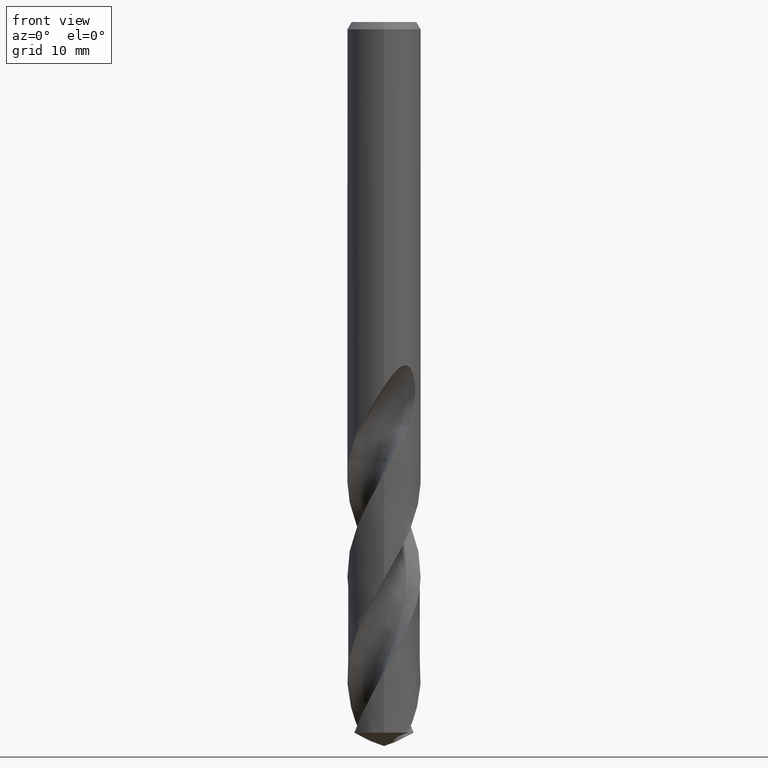
[diagram: clean part render]
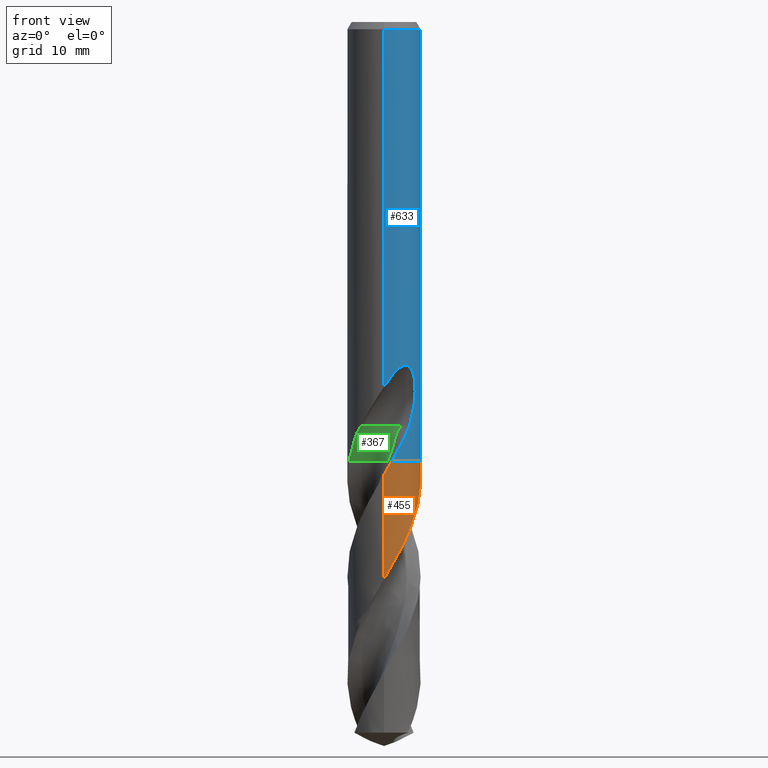
[diagram: same view with three faces highlighted in distinct colors, each labeled with its STEP entity id]
A machine part, front view with three faces highlighted in distinct colors.
Their STEP definitions:

[orange] entity #455 — the highlighted conical surface has half-angle 0 deg.
#323=VERTEX_POINT('',#856);
#339=VERTEX_POINT('',#874);
#347=VERTEX_POINT('',#882);
#361=EDGE_CURVE('',#347,#527,#896,.T.);
#425=EDGE_CURVE('',#347,#555,#965,.T.);
#455=ADVANCED_FACE('',(#997),#998,.T.);
#513=EDGE_CURVE('',#555,#339,#1061,.T.);
#527=VERTEX_POINT('',#1077);
#555=VERTEX_POINT('',#1108);
#667=VERTEX_POINT('',#1234);
#673=EDGE_CURVE('',#667,#527,#1240,.T.);
#711=EDGE_CURVE('',#339,#323,#1285,.T.);
#763=EDGE_CURVE('',#323,#667,#1340,.T.);
#856=CARTESIAN_POINT('',(0.84432856238207,-3.90977100208514,-47.9));
#874=CARTESIAN_POINT('',(3.82484600599484,1.1703644904154,-47.9));
#882=CARTESIAN_POINT('',(-2.64160220233817E-015,-3.9999434776858,-60.7885769449526));
#896=LINE('',#1825,#1826);
#965=B_SPLINE_CURVE_WITH_KNOTS('',3,(#3581,#3582,#3583,#3584,#3585,#3586,#3587,#3588,#3589,#3590,#3591,#3592,#3593,#3594,#3595,#3596,#3597,#3598,#3599,#3600,#3601,#3602,#3603,#3604,#3605,#3606,#3607,#3608,#3609,#3610,#3611,#3612,#3613,#3614,#3615,#3616,#3617,#3618,#3619,#3620,#3621,#3622,#3623,#3624,#3625,#3626,#3627,#3628,#3629,#3630,#3631,#3632,#3633,#3634,#3635,#3636,#3637,#3638,#3639,#3640,#3641,#3642),.UNSPECIFIED.,.F.,.F.,(4,2,2,2,2,2,2,2,2,2,2,2,2,2,2,2,2,2,2,2,2,2,2,2,2,2,2,2,2,2,4),(0.0,2.52909009548644,4.29207866055679,5.44875374152552,6.70753995485225,7.97154982379135,9.22953998711402,10.684855928146,11.1351196335765,13.0307132423376,13.8024057269234,14.9611897426736,15.5903184239384,16.3625691604563,17.4760068732723,18.1096299547179,19.3707190722274,20.6101771162623,21.8713421238414,23.1377487823668,24.3986579732578,25.599848178339,26.1459670690106,26.2299585975912,27.4904675617,28.1923060344766,29.5451166228257,30.7350022259335,31.6254892369254,32.9668919207051,34.3023211929296),.UNSPECIFIED.);
#997=FACE_OUTER_BOUND('',#3768,.T.);
#998=CONICAL_SURFACE('',#3769,3.99995,3.37335036968139E-006);
#1061=B_SPLINE_CURVE_WITH_KNOTS('',3,(#4591,#4592,#4593,#4594),.UNSPECIFIED.,.F.,.F.,(4,4),(0.0,0.0117851245765833),.UNSPECIFIED.);
#1077=CARTESIAN_POINT('',(-8.60177868781741E-013,-3.99990495213512,-49.3680168280788));
#1108=CARTESIAN_POINT('',(3.82569391059703,1.16758994139769,-47.905));
#1234=CARTESIAN_POINT('',(0.841490457377264,-3.91038283996256,-47.905));
#1240=B_SPLINE_CURVE_WITH_KNOTS('',3,(#6769,#6770,#6771,#6772,#6773,#6774,#6775,#6776,#6777,#6778,#6779,#6780,#6781,#6782,#6783,#6784,#6785,#6786,#6787,#6788,#6789,#6790,#6791,#6792,#6793,#6794,#6795,#6796,#6797,#6798,#6799,#6800,#6801,#6802,#6803,#6804,#6805,#6806,#6807,#6808,#6809,#6810,#6811,#6812,#6813,#6814,#6815,#6816,#6817,#6818,#6819,#6820,#6821,#6822),.UNSPECIFIED.,.F.,.F.,(4,2,2,2,2,2,2,2,2,2,2,2,2,2,2,2,2,2,2,2,2,2,2,2,2,2,4),(0.0,1.03017347157626,2.91201458369783,3.29431377438385,4.82500232112547,6.36974686381112,7.91124597643185,8.67424920203278,10.2112961135474,10.979900853175,12.5118168337591,14.0537860439014,15.5970472787291,15.9779147349018,17.5080466201576,18.2811780145629,18.3286424693817,19.9381718864853,21.48387079914,23.02381906916,23.7204132516327,25.0322780670569,25.6098442991591,26.148113193975,28.1699939471975,28.5506540911417,34.3366357877211),.UNSPECIFIED.);
#1285=CIRCLE('',#7170,3.9999);
#1340=B_SPLINE_CURVE_WITH_KNOTS('',3,(#7846,#7847,#7848,#7849),.UNSPECIFIED.,.F.,.F.,(4,4),(0.0,0.00978183870747939),.UNSPECIFIED.);
#1825=CARTESIAN_POINT('',(4.89956122101215E-016,-3.99995,-62.7220595314676));
#1826=VECTOR('',#8002,1.0);
#3581=CARTESIAN_POINT('',(-2.61665020400856,3.02541595650286,-77.5441190629352));
#3582=CARTESIAN_POINT('',(-2.93525158170459,2.74985774386509,-76.8138722086843));
#3583=CARTESIAN_POINT('',(-3.20905155491949,2.42508774319607,-76.093207829952));
#3584=CARTESIAN_POINT('',(-3.57937317074287,1.80970864028374,-74.8570117096307));
#3585=CARTESIAN_POINT('',(-3.70290292215696,1.54118739529024,-74.3471050898531));
#3586=CARTESIAN_POINT('',(-3.85681344888509,1.07808127157106,-73.5061151904003));
#3587=CARTESIAN_POINT('',(-3.90438126544826,0.890507251904455,-73.1741897127061));
#3588=CARTESIAN_POINT('',(-3.97500502584312,0.493347217418282,-72.4782814190061));
#3589=CARTESIAN_POINT('',(-3.99545752545651,0.283705754915563,-72.1144458545978));
#3590=CARTESIAN_POINT('',(-4.00317873038289,-0.138126016031652,-71.3875537119862));
#3591=CARTESIAN_POINT('',(-3.99028443946723,-0.349351877661329,-71.0249700706381));
#3592=CARTESIAN_POINT('',(-3.93145793992638,-0.766558393567201,-70.2981211044346));
#3593=CARTESIAN_POINT('',(-3.88575768609385,-0.972091371494406,-69.9342935638264));
#3594=CARTESIAN_POINT('',(-3.7526292366876,-1.4059900039311,-69.152209301035));
#3595=CARTESIAN_POINT('',(-3.66018922716072,-1.63150778713114,-68.7351855208568));
#3596=CARTESIAN_POINT('',(-3.51327355599825,-1.91371574301984,-68.1856407780904));
#3597=CARTESIAN_POINT('',(-3.47673540913121,-1.97931473993959,-68.0556095161923));
#3598=CARTESIAN_POINT('',(-3.27695275074376,-2.31541073952063,-67.3796206931812));
#3599=CARTESIAN_POINT('',(-3.08384090723262,-2.56704325646315,-66.8390038250905));
#3600=CARTESIAN_POINT('',(-2.7729729199155,-2.88563629589048,-66.0710790554109));
#3601=CARTESIAN_POINT('',(-2.67875904282509,-2.97329099679037,-65.848322719936));
#3602=CARTESIAN_POINT('',(-2.43304927059796,-3.18075492585144,-65.2927867460018));
#3603=CARTESIAN_POINT('',(-2.27656662014444,-3.29459440148243,-64.9606577668409));
#3604=CARTESIAN_POINT('',(-2.02301366320929,-3.4522601878259,-64.4466489503402));
#3605=CARTESIAN_POINT('',(-1.93171551028771,-3.50415735043529,-64.2659448901878));
#3606=CARTESIAN_POINT('',(-1.72421743458825,-3.61154841852838,-63.8628390237395));
#3607=CARTESIAN_POINT('',(-1.60723087424048,-3.66510126836197,-63.6401252214672));
#3608=CARTESIAN_POINT('',(-1.31578464052057,-3.78188989722991,-63.0978800812012));
#3609=CARTESIAN_POINT('',(-1.13892209404188,-3.83887834994533,-62.7788889798605));
#3610=CARTESIAN_POINT('',(-0.85585269638371,-3.90874481261098,-62.2769567649622));
#3611=CARTESIAN_POINT('',(-0.752309163325987,-3.92998205441008,-62.0950846428526));
#3612=CARTESIAN_POINT('',(-0.440797651339579,-3.98113218187455,-61.5504308279925));
#3613=CARTESIAN_POINT('',(-0.231011604120035,-3.99880780545726,-61.1866484066018));
#3614=CARTESIAN_POINT('',(0.186190433138098,-4.00095466320454,-60.4677345795792));
#3615=CARTESIAN_POINT('',(0.392680750709359,-3.98597878246196,-60.1129104757033));
#3616=CARTESIAN_POINT('',(0.804887325384131,-3.92375720238395,-59.3938405969283));
#3617=CARTESIAN_POINT('',(1.01000260691187,-3.87604047119822,-59.0299364496399));
#3618=CARTESIAN_POINT('',(1.41202023959087,-3.74837874116232,-58.3030593262574));
#3619=CARTESIAN_POINT('',(1.60799126420315,-3.66857339380917,-57.9404918383997));
#3620=CARTESIAN_POINT('',(1.98452074689352,-3.47927263960285,-57.2135739213274));
#3621=CARTESIAN_POINT('',(2.1646495198826,-3.37016757335637,-56.8496510014152));
#3622=CARTESIAN_POINT('',(2.49828096407275,-3.1302098424697,-56.1414375399805));
#3623=CARTESIAN_POINT('',(2.65198549720966,-3.00109104270563,-55.7973169268977));
#3624=CARTESIAN_POINT('',(2.86049787716943,-2.79736537066504,-55.2946765041973));
#3625=CARTESIAN_POINT('',(2.92337412406053,-2.73158016711241,-55.137641152134));
#3626=CARTESIAN_POINT('',(2.99317112092446,-2.65339635937211,-54.9561938346966));
#3627=CARTESIAN_POINT('',(3.00244597010614,-2.64289718230371,-54.9319461456963));
#3628=CARTESIAN_POINT('',(3.1505069646867,-2.47349498487487,-54.5426579058811));
#3629=CARTESIAN_POINT('',(3.27677648363356,-2.30367553205029,-54.1794148356826));
#3630=CARTESIAN_POINT('',(3.45180354377981,-2.02442583360794,-53.6120346846714));
#3631=CARTESIAN_POINT('',(3.50990979350228,-1.92190871841717,-53.4093584523424));
#3632=CARTESIAN_POINT('',(3.66642544821955,-1.61496721398534,-52.814990198283));
#3633=CARTESIAN_POINT('',(3.75215912877216,-1.40436821877447,-52.4222681476367));
#3634=CARTESIAN_POINT('',(3.8789328713888,-0.996554976358021,-51.6866688254399));
#3635=CARTESIAN_POINT('',(3.92384816006837,-0.801610852333797,-51.3438245075044));
#3636=CARTESIAN_POINT('',(3.97658300550646,-0.4565032307883,-50.7418510063681));
#3637=CARTESIAN_POINT('',(3.99084008201445,-0.307804222137278,-50.4834806324904));
#3638=CARTESIAN_POINT('',(4.00567710312914,0.0659998642916536,-49.8377520455025));
#3639=CARTESIAN_POINT('',(3.99564026625922,0.290952198319217,-49.4521425955361));
#3640=CARTESIAN_POINT('',(3.93798959270843,0.735909085540783,-48.6785524034716));
#3641=CARTESIAN_POINT('',(3.89086048865627,0.954092869254765,-48.2897227646684));
#3642=CARTESIAN_POINT('',(3.8256610021853,1.16769775029603,-47.9048057224156));
#3768=EDGE_LOOP('',(#8074,#8075,#8076,#8077,#8078,#8079));
#3769=AXIS2_PLACEMENT_3D('',#8080,#8081,#8082);
#4591=CARTESIAN_POINT('',(3.82657240271376,1.16470765940408,-47.9101935751157));
#4592=CARTESIAN_POINT('',(3.82599838202813,1.16659352822929,-47.9067956157195));
#4593=CARTESIAN_POINT('',(3.82542291657667,1.16847913905119,-47.9033977570726));
#4594=CARTESIAN_POINT('',(3.82484600599483,1.17036449041538,-47.9));
#6769=CARTESIAN_POINT('',(0.842252175336183,-3.91021884066097,-47.9036581221473));
#6770=CARTESIAN_POINT('',(0.673686393495345,-3.94652854840767,-48.2006171583012));
#6771=CARTESIAN_POINT('',(0.503146776738702,-3.97185710932871,-48.4977187565675));
#6772=CARTESIAN_POINT('',(0.0185811040988492,-4.0121853129916,-49.3375144710599));
#6773=CARTESIAN_POINT('',(-0.296702571145916,-4.00127293201104,-49.8770764443608));
#6774=CARTESIAN_POINT('',(-0.670804311583373,-3.94377697911563,-50.5297119031313));
#6775=CARTESIAN_POINT('',(-0.733714056687305,-3.93255877944514,-50.6398838371549));
#6776=CARTESIAN_POINT('',(-1.04697539840699,-3.86892149906396,-51.1914072392448));
#6777=CARTESIAN_POINT('',(-1.29224120179685,-3.79406062485765,-51.6321749170238));
#6778=CARTESIAN_POINT('',(-1.76735280412721,-3.59756577271283,-52.5187788202877));
#6779=CARTESIAN_POINT('',(-1.99581736609937,-3.47601463873702,-52.962648801256));
#6780=CARTESIAN_POINT('',(-2.42558363641223,-3.19096428913575,-53.8525332925807));
#6781=CARTESIAN_POINT('',(-2.62606596897695,-3.02813397198743,-54.2959605222927));
#6782=CARTESIAN_POINT('',(-2.90035971759807,-2.75745954271854,-54.9602747614768));
#6783=CARTESIAN_POINT('',(-2.98680329123716,-2.66358030837119,-55.1800603115455));
#6784=CARTESIAN_POINT('',(-3.23335356052449,-2.36871556880681,-55.843273261756));
#6785=CARTESIAN_POINT('',(-3.3788098842334,-2.1561846606496,-56.2856409913523));
#6786=CARTESIAN_POINT('',(-3.56494983612718,-1.81854226202404,-56.9503430535647));
#6787=CARTESIAN_POINT('',(-3.62152495174385,-1.70308942333399,-57.1716518080006));
#6788=CARTESIAN_POINT('',(-3.77391868806699,-1.35002862276547,-57.8349995170637));
#6789=CARTESIAN_POINT('',(-3.85260865913644,-1.10566984619977,-58.2761333301143));
#6790=CARTESIAN_POINT('',(-3.96253795056591,-0.603556359651768,-59.1624390482714));
#6791=CARTESIAN_POINT('',(-3.99318357869603,-0.347003391017085,-59.6057766262514));
#6792=CARTESIAN_POINT('',(-4.00470640357595,0.168488626178308,-60.4955316571068));
#6793=CARTESIAN_POINT('',(-3.9855191988966,0.426393181056836,-60.9394407313882));
#6794=CARTESIAN_POINT('',(-3.93075222920594,0.743512994628159,-61.4941925030994));
#6795=CARTESIAN_POINT('',(-3.91841648208874,0.806000602916887,-61.6039581763709));
#6796=CARTESIAN_POINT('',(-3.84907235973445,1.11788785155612,-62.1550475546285));
#6797=CARTESIAN_POINT('',(-3.76970750054545,1.36175667895732,-62.5957894597947));
#6798=CARTESIAN_POINT('',(-3.61598282577878,1.71493425934216,-63.2600046730116));
#6799=CARTESIAN_POINT('',(-3.558659612255,1.83092491662335,-63.4827625695237));
#6800=CARTESIAN_POINT('',(-3.49195317324357,1.95088517976447,-63.7193873695235));
#6801=CARTESIAN_POINT('',(-3.48807445274058,1.95781176972246,-63.7330734325323));
#6802=CARTESIAN_POINT('',(-3.35194263175532,2.19922623309834,-64.2109171510965));
#6803=CARTESIAN_POINT('',(-3.19636417291365,2.41978839004568,-64.6746537131142));
#6804=CARTESIAN_POINT('',(-2.85030830183953,2.81820033257323,-65.5847052462225));
#6805=CARTESIAN_POINT('',(-2.66230056601147,2.996433856509,-66.0290495000613));
#6806=CARTESIAN_POINT('',(-2.25539703805757,3.31348343528847,-66.9191930565251));
#6807=CARTESIAN_POINT('',(-2.03744388777275,3.45180002990087,-67.3624259308139));
#6808=CARTESIAN_POINT('',(-1.70365573418088,3.62089513443929,-68.0074590540665));
#6809=CARTESIAN_POINT('',(-1.59747606280266,3.66897605725311,-68.2081895683364));
#6810=CARTESIAN_POINT('',(-1.28579076203504,3.79402468563363,-68.7875915673083));
#6811=CARTESIAN_POINT('',(-1.07578871820617,3.85883499659665,-69.1656531796215));
#6812=CARTESIAN_POINT('',(-0.767151510000453,3.92690732527416,-69.7106724664138));
#6813=CARTESIAN_POINT('',(-0.672071391739469,3.9442936028163,-69.8771938950447));
#6814=CARTESIAN_POINT('',(-0.487319805251732,3.97120038274928,-70.199034622297));
#6815=CARTESIAN_POINT('',(-0.397810933328804,3.98116268562723,-70.3541876441854));
#6816=CARTESIAN_POINT('',(0.029084137784446,4.01414028576566,-71.0927946244063));
#6817=CARTESIAN_POINT('',(0.368291637148982,3.99733373238519,-71.6742791706336));
#6818=CARTESIAN_POINT('',(0.764102675019265,3.92683906140251,-72.3673411573003));
#6819=CARTESIAN_POINT('',(0.826528381652812,3.91417547722406,-72.4771028761854));
#6820=CARTESIAN_POINT('',(1.83241182074508,3.68499133414607,-74.2562648493291));
#6821=CARTESIAN_POINT('',(2.66713920109878,3.13439308357946,-75.8751790458363));
#6822=CARTESIAN_POINT('',(3.23635106662302,2.35075132108186,-77.5441190629351));
#7170=AXIS2_PLACEMENT_3D('',#8451,#8452,#8453);
#7846=CARTESIAN_POINT('',(0.844328562382053,-3.90977100208514,-47.9));
#7847=CARTESIAN_POINT('',(0.842728146189278,-3.91011662722512,-47.902819717676));
#7848=CARTESIAN_POINT('',(0.841127531368735,-3.91046126676367,-47.90563944256));
#7849=CARTESIAN_POINT('',(0.839526718834491,-3.91080492055579,-47.908459176198));
#8002=DIRECTION('',(-4.13102629637307E-022,3.373350369675E-006,0.99999999999431));
#8074=ORIENTED_EDGE('',*,*,#361,.F.);
#8075=ORIENTED_EDGE('',*,*,#425,.T.);
#8076=ORIENTED_EDGE('',*,*,#513,.T.);
#8077=ORIENTED_EDGE('',*,*,#711,.T.);
#8078=ORIENTED_EDGE('',*,*,#763,.T.);
#8079=ORIENTED_EDGE('',*,*,#673,.T.);
#8080=CARTESIAN_POINT('',(0.0,0.0,-62.7220595314676));
#8081=DIRECTION('',(0.0,-0.0,-1.0));
#8082=DIRECTION('',(0.0,1.0,0.0));
#8451=CARTESIAN_POINT('',(0.0,0.0,-47.9));
#8452=DIRECTION('',(0.0,0.0,-1.0));
#8453=DIRECTION('',(0.0,1.0,0.0));

[blue] entity #633 — the highlighted cylindrical surface (partial cylindrical patch) has radius 4 mm, axis along (-0, -0, 1).
#291=VERTEX_POINT('',#822);
#293=EDGE_CURVE('',#695,#643,#824,.T.);
#299=VERTEX_POINT('',#830);
#309=VERTEX_POINT('',#842);
#311=EDGE_CURVE('',#449,#575,#844,.T.);
#317=EDGE_CURVE('',#309,#473,#850,.T.);
#329=VERTEX_POINT('',#863);
#341=VERTEX_POINT('',#876);
#363=VERTEX_POINT('',#898);
#365=EDGE_CURVE('',#541,#755,#900,.T.);
#381=EDGE_CURVE('',#341,#445,#918,.T.);
#409=EDGE_CURVE('',#363,#329,#947,.T.);
#423=EDGE_CURVE('',#299,#363,#963,.T.);
#429=VERTEX_POINT('',#969);
#445=VERTEX_POINT('',#986);
#449=VERTEX_POINT('',#991);
#469=VERTEX_POINT('',#1014);
#471=VERTEX_POINT('',#1016);
#473=VERTEX_POINT('',#1018);
#517=EDGE_CURVE('',#291,#445,#1066,.T.);
#541=VERTEX_POINT('',#1092);
#563=EDGE_CURVE('',#607,#649,#1117,.T.);
#567=EDGE_CURVE('',#469,#309,#1122,.T.);
#575=VERTEX_POINT('',#1130);
#601=EDGE_CURVE('',#429,#575,#1160,.T.);
#607=VERTEX_POINT('',#1167);
#613=EDGE_CURVE('',#299,#643,#1173,.T.);
#615=EDGE_CURVE('',#329,#449,#1175,.T.);
#625=EDGE_CURVE('',#429,#471,#1186,.T.);
#633=ADVANCED_FACE('',(#1195),#1196,.T.);
#643=VERTEX_POINT('',#1207);
#649=VERTEX_POINT('',#1213);
#693=VERTEX_POINT('',#1265);
#695=VERTEX_POINT('',#1267);
#713=EDGE_CURVE('',#649,#469,#1287,.T.);
#717=EDGE_CURVE('',#341,#607,#1291,.T.);
#735=EDGE_CURVE('',#471,#541,#1310,.T.);
#755=VERTEX_POINT('',#1331);
#757=EDGE_CURVE('',#473,#695,#1333,.T.);
#785=EDGE_CURVE('',#693,#755,#1363,.T.);
#787=EDGE_CURVE('',#693,#291,#1365,.T.);
#822=CARTESIAN_POINT('',(2.54885976013372,3.08274454393663,-44.053));
#824=B_SPLINE_CURVE_WITH_KNOTS('',3,(#1415,#1416,#1417,#1418,#1419,#1420,#1421,#1422,#1423,#1424,#1425,#1426,#1427,#1428,#1429,#1430,#1431,#1432,#1433,#1434,#1435,#1436,#1437,#1438,#1439,#1440,#1441),.UNSPECIFIED.,.F.,.F.,(4,2,3,2,2,2,2,2,2,2,2,2,4),(-0.543018145553855,-0.271509072776928,0.0,0.271509072776927,0.543018145553855,0.815414280910791,1.08781041626773,1.35870467547365,1.62959893467958,1.90093601549038,2.17227309630118,2.44361017711198,2.71494725792278),.UNSPECIFIED.);
#830=CARTESIAN_POINT('',(-4.89842541528951E-016,4.0,-25.0010379994371));
#842=CARTESIAN_POINT('',(1.33721006514658,3.76986329217263,-33.2901657003257));
#844=CIRCLE('',#1705,4.0);
#850=LINE('',#1721,#1722);
#863=CARTESIAN_POINT('',(3.17557583065469,2.43222493691719,-22.8044492009967));
#876=CARTESIAN_POINT('',(-6.37761657961682E-016,4.0,-34.0310253601033));
#898=CARTESIAN_POINT('',(2.90106925914968,2.7538694873971,-23.6647266291147));
#900=B_SPLINE_CURVE_WITH_KNOTS('',3,(#1831,#1832,#1833,#1834,#1835,#1836,#1837,#1838),.UNSPECIFIED.,.F.,.F.,(4,2,2,4),(0.0,1.10632641720365,2.12353195809791,4.12059149233189),.UNSPECIFIED.);
#918=LINE('',#2939,#2940);
#947=B_SPLINE_CURVE_WITH_KNOTS('',3,(#3498,#3499,#3500,#3501,#3502,#3503,#3504,#3505,#3506,#3507,#3508,#3509),.UNSPECIFIED.,.F.,.F.,(4,2,2,2,2,4),(11.3584858949333,11.6841057456814,12.0097255964295,12.2731801338981,12.5366346713666,12.8000892088352),.UNSPECIFIED.);
#963=ELLIPSE('',#3578,5.8651167425585,4.0);
#969=CARTESIAN_POINT('',(1.18285448710148E-012,-4.0,-39.8010886237942));
#986=CARTESIAN_POINT('',(-1.18618515617536E-012,4.0,-39.8010886237942));
#991=CARTESIAN_POINT('',(2.39915011791252,3.20063723525806,-0.799999999999997));
#1014=CARTESIAN_POINT('',(0.873560781758956,3.90344611344549,-33.7587351791531));
#1016=CARTESIAN_POINT('',(3.25456865325919,-2.32546401417495,-41.862679091506));
#1018=CARTESIAN_POINT('',(1.33721006514658,3.76986329217263,-31.5150484364821));
#1066=B_SPLINE_CURVE_WITH_KNOTS('',3,(#5105,#5106,#5107,#5108,#5109,#5110,#5111,#5112,#5113,#5114,#5115,#5116,#5117,#5118,#5119,#5120,#5121,#5122,#5123,#5124,#5125,#5126,#5127,#5128,#5129,#5130,#5131,#5132,#5133,#5134),.UNSPECIFIED.,.F.,.F.,(4,2,2,2,2,2,2,2,2,2,2,2,2,2,4),(0.0,1.95977624076947,3.02985967370601,3.99908599318628,5.12509377225497,6.47768674139893,7.65000215056745,8.18125540149243,8.56953673186918,8.93696441781958,9.40306833899562,10.0849972789289,11.0544394482072,11.6888355435218,12.3555427460094),.UNSPECIFIED.);
#1092=CARTESIAN_POINT('',(2.78030937116489,-2.87573987012259,-44.053));
#1117=ELLIPSE('',#5592,12.1919782934791,4.0);
#1122=B_SPLINE_CURVE_WITH_KNOTS('',3,(#6103,#6104,#6105,#6106,#6107,#6108,#6109,#6110,#6111,#6112),.UNSPECIFIED.,.F.,.F.,(4,2,2,2,4),(8.07922159159579,8.38940045176896,8.69957931194214,9.01038857642139,9.32119784090064),.UNSPECIFIED.);
#1130=CARTESIAN_POINT('',(4.89842541528951E-016,-4.0,-0.799999999999997));
#1160=LINE('',#6337,#6338);
#1167=CARTESIAN_POINT('',(0.29010312703583,3.98946615171554,-33.9998328990228));
#1173=LINE('',#6365,#6366);
#1175=ELLIPSE('',#6369,114.614833391376,4.0);
#1186=B_SPLINE_CURVE_WITH_KNOTS('',3,(#6382,#6383,#6384,#6385,#6386,#6387,#6388,#6389,#6390,#6391,#6392,#6393,#6394,#6395,#6396,#6397,#6398,#6399,#6400,#6401,#6402,#6403,#6404,#6405,#6406,#6407,#6408,#6409,#6410,#6411),.UNSPECIFIED.,.F.,.F.,(4,2,2,2,2,2,2,2,2,2,2,2,2,2,4),(0.0,1.9597762407695,3.02985967370596,3.99908599318602,5.1250937722548,6.47768674139874,7.65000215056726,8.18125540149219,8.56953673186899,8.93696441781943,9.40306833899536,10.0849972789282,11.0544394482058,11.6888355435201,12.3555427460073),.UNSPECIFIED.);
#1195=FACE_OUTER_BOUND('',#6650,.T.);
#1196=CYLINDRICAL_SURFACE('',#6651,4.0);
#1207=CARTESIAN_POINT('',(0.0,4.0,-32.0232688117743));
#1213=CARTESIAN_POINT('',(0.873560781758957,3.90344611344549,-32.3198931596091));
#1265=CARTESIAN_POINT('',(3.82492956080188,1.17043319113221,-47.9));
#1267=CARTESIAN_POINT('',(0.799431726384364,3.91929954390451,-31.000000276873));
#1287=LINE('',#7173,#7174);
#1291=B_SPLINE_CURVE_WITH_KNOTS('',3,(#7179,#7180,#7181,#7182,#7183,#7184,#7185,#7186,#7187,#7188,#7189,#7190,#7191,#7192,#7193,#7194),.UNSPECIFIED.,.F.,.F.,(4,2,2,2,2,2,2,4),(5.59330412183837,6.21519943861119,6.52611580040833,6.83703216220547,7.14794852400261,7.45886488579976,7.76904377517712,8.07922266455448),.UNSPECIFIED.);
#1310=B_SPLINE_CURVE_WITH_KNOTS('',3,(#7288,#7289,#7290,#7291),.UNSPECIFIED.,.F.,.F.,(4,4),(0.0,2.29887959846367),.UNSPECIFIED.);
#1331=CARTESIAN_POINT('',(0.844356747906502,-3.90986722054148,-47.9));
#1333=B_SPLINE_CURVE_WITH_KNOTS('',3,(#7600,#7601,#7602,#7603,#7604,#7605,#7606,#7607,#7608,#7609),.UNSPECIFIED.,.F.,.F.,(4,2,2,2,4),(0.621618550720989,0.932427826081483,1.24323710144198,1.55341597198189,1.8635948425218),.UNSPECIFIED.);
#1363=CIRCLE('',#7881,4.0);
#1365=B_SPLINE_CURVE_WITH_KNOTS('',3,(#7884,#7885,#7886,#7887,#7888,#7889,#7890,#7891,#7892,#7893,#7894,#7895),.UNSPECIFIED.,.F.,.F.,(4,2,2,2,2,4),(0.0,1.76757034416059,2.09147415716708,2.80581311516994,3.80856320103616,5.94142381079544),.UNSPECIFIED.);
#1415=CARTESIAN_POINT('',(0.665279195004375,3.9442874632428,-30.8137529884524));
#1416=CARTESIAN_POINT('',(0.72877088492158,3.9335783806135,-30.8773526603125));
#1417=CARTESIAN_POINT('',(0.783944488018489,3.92260552826083,-30.957920893425));
#1418=CARTESIAN_POINT('',(0.857267073993339,3.90723639918054,-31.134802544027));
#1419=CARTESIAN_POINT('',(0.875400981188567,3.90303383563787,-31.2311389883278));
#1420=CARTESIAN_POINT('',(0.875400981188567,3.90303383563787,-31.3216420125868));
#1421=CARTESIAN_POINT('',(0.875400981188567,3.90303383563787,-31.4121450368458));
#1422=CARTESIAN_POINT('',(0.857267073993339,3.90723639918054,-31.5084814811466));
#1423=CARTESIAN_POINT('',(0.783944488018488,3.92260552826083,-31.6853631317485));
#1424=CARTESIAN_POINT('',(0.728770884921581,3.9335783806135,-31.765931364861));
#1425=CARTESIAN_POINT('',(0.601580067811904,3.95503153411898,-31.8933384986505));
#1426=CARTESIAN_POINT('',(0.520902117238449,3.96693827151805,-31.9487071231089));
#1427=CARTESIAN_POINT('',(0.343752086871948,3.98619778335453,-32.0223037477669));
#1428=CARTESIAN_POINT('',(0.247255556938652,3.99338316413851,-32.0405166027747));
#1429=CARTESIAN_POINT('',(0.0662974670001867,4.00046977119903,-32.0405166027747));
#1430=CARTESIAN_POINT('',(-0.0299674229107091,4.00086780861984,-32.0224830783564));
#1431=CARTESIAN_POINT('',(-0.206991592502204,3.99562207288533,-31.9491870835923));
#1432=CARTESIAN_POINT('',(-0.287758268875903,3.99014940483369,-31.8939303320089));
#1433=CARTESIAN_POINT('',(-0.415384305359873,3.97889009382894,-31.7664425414649));
#1434=CARTESIAN_POINT('',(-0.470753835570468,3.9723749730993,-31.6856442592887));
#1435=CARTESIAN_POINT('',(-0.544239101864661,3.96297563900076,-31.5084730190186));
#1436=CARTESIAN_POINT('',(-0.562348199187247,3.96027328638705,-31.4120877061904));
#1437=CARTESIAN_POINT('',(-0.562348199187247,3.96027328638705,-31.2311963189832));
#1438=CARTESIAN_POINT('',(-0.544239101864661,3.96297563900076,-31.134811006155));
#1439=CARTESIAN_POINT('',(-0.470753835570468,3.9723749730993,-30.9576397658849));
#1440=CARTESIAN_POINT('',(-0.415384305359873,3.97889009382894,-30.8768414837086));
#1441=CARTESIAN_POINT('',(-0.351519173230209,3.98452434687649,-30.8130455309993));
#1705=AXIS2_PLACEMENT_3D('',#7971,#7972,#7973);
#1721=CARTESIAN_POINT('',(1.33721006514658,3.76986329217263,-32.4026070684039));
#1722=VECTOR('',#7977,1.0);
#1831=CARTESIAN_POINT('',(2.78030937116489,-2.87573987012259,-44.053));
#1832=CARTESIAN_POINT('',(2.65408441217481,-2.99777609460908,-44.3772988878886));
#1833=CARTESIAN_POINT('',(2.51856401027531,-3.11352972961325,-44.6945696174488));
#1834=CARTESIAN_POINT('',(2.21972181314151,-3.33231304409926,-45.3209425737857));
#1835=CARTESIAN_POINT('',(2.06863912835906,-3.4288407279298,-45.619440745284));
#1836=CARTESIAN_POINT('',(1.57247889539305,-3.69687784788285,-46.5924728657321));
#1837=CARTESIAN_POINT('',(1.21679924166718,-3.82943627108063,-47.2438236372523));
#1838=CARTESIAN_POINT('',(0.844356747906513,-3.90986722054146,-47.9));
#2939=CARTESIAN_POINT('',(-4.89842541528951E-016,4.0,-41.95));
#2940=VECTOR('',#8016,1.0);
#3498=CARTESIAN_POINT('',(2.72825811350288,2.92516797228906,-23.8164335616677));
#3499=CARTESIAN_POINT('',(2.79934898450475,2.85886263617018,-23.7681571568462));
#3500=CARTESIAN_POINT('',(2.87037562163102,2.78727750482259,-23.7050263576755));
#3501=CARTESIAN_POINT('',(2.99188729278926,2.65642284716352,-23.5529400608025));
#3502=CARTESIAN_POINT('',(3.04244445655147,2.59747996728043,-23.4637614123037));
#3503=CARTESIAN_POINT('',(3.10947264435204,2.51662199005865,-23.2978526284994));
#3504=CARTESIAN_POINT('',(3.13500705494615,2.48444398927719,-23.2110167610061));
#3505=CARTESIAN_POINT('',(3.16830826056413,2.44183412236597,-23.0291690242009));
#3506=CARTESIAN_POINT('',(3.17613558772012,2.4314939293401,-22.9341467761959));
#3507=CARTESIAN_POINT('',(3.17613558772012,2.4314939293401,-22.7585104178835));
#3508=CARTESIAN_POINT('',(3.16830826056413,2.44183412236597,-22.6634881698785));
#3509=CARTESIAN_POINT('',(3.1516576577551,2.46313905582159,-22.5725643014759));
#3578=AXIS2_PLACEMENT_3D('',#8051,#8052,#8053);
#5105=CARTESIAN_POINT('',(2.54885976013372,3.08274454393663,-44.053));
#5106=CARTESIAN_POINT('',(2.28500523660261,3.30090345005828,-43.4966417767988));
#5107=CARTESIAN_POINT('',(1.98163231588755,3.49483155995579,-42.977936421169));
#5108=CARTESIAN_POINT('',(1.45264038690851,3.73253113273964,-42.1114036522164));
#5109=CARTESIAN_POINT('',(1.26228426683794,3.80090830680974,-41.8065283302372));
#5110=CARTESIAN_POINT('',(0.893778878987872,3.90310035133813,-41.2163687713547));
#5111=CARTESIAN_POINT('',(0.717274980064568,3.93920455800775,-40.9338353559214));
#5112=CARTESIAN_POINT('',(0.33521839832061,3.99131183045806,-40.3249008687614));
#5113=CARTESIAN_POINT('',(0.126474396085212,4.00354517408276,-39.9937333591078));
#5114=CARTESIAN_POINT('',(-0.337092631504132,3.99379417253619,-39.2852567198373));
#5115=CARTESIAN_POINT('',(-0.611941054861174,3.96363461880695,-38.8821257542007));
#5116=CARTESIAN_POINT('',(-1.14195068256935,3.84183599193105,-38.2173906398542));
#5117=CARTESIAN_POINT('',(-1.43518376737336,3.74904084478621,-37.8930259656217));
#5118=CARTESIAN_POINT('',(-1.87898919238026,3.53454780533531,-37.5892910671245));
#5119=CARTESIAN_POINT('',(-2.02589175203402,3.45357173492742,-37.5142260075858));
#5120=CARTESIAN_POINT('',(-2.28329880223286,3.28684001880265,-37.4565626198684));
#5121=CARTESIAN_POINT('',(-2.38887588461981,3.21090914700583,-37.4554859280565));
#5122=CARTESIAN_POINT('',(-2.58551889986573,3.05450740730473,-37.5059535003711));
#5123=CARTESIAN_POINT('',(-2.67152074136922,2.97896849222708,-37.5532713078944));
#5124=CARTESIAN_POINT('',(-2.8465335331701,2.81343086569157,-37.7013232644774));
#5125=CARTESIAN_POINT('',(-2.92750237022738,2.72764511666503,-37.8106329899809));
#5126=CARTESIAN_POINT('',(-3.09335272716449,2.54032566393313,-38.1099569518954));
#5127=CARTESIAN_POINT('',(-3.17262589307935,2.43831682967142,-38.331966872197));
#5128=CARTESIAN_POINT('',(-3.32169614375785,2.23348439746403,-38.953125946192));
#5129=CARTESIAN_POINT('',(-3.37558848211908,2.14623565430961,-39.3955071231946));
#5130=CARTESIAN_POINT('',(-3.40226299691169,2.10356902640446,-40.21424616535));
#5131=CARTESIAN_POINT('',(-3.39599104218287,2.1139685132873,-40.5403087544243));
#5132=CARTESIAN_POINT('',(-3.35169145718829,2.18356392775092,-41.2020529092011));
#5133=CARTESIAN_POINT('',(-3.31213718412787,2.24489483106254,-41.5352437340999));
#5134=CARTESIAN_POINT('',(-3.25456865325918,2.32546401417496,-41.862679091506));
#5592=AXIS2_PLACEMENT_3D('',#8183,#8184,#8185);
#6103=CARTESIAN_POINT('',(0.597825566619951,3.95507327263295,-33.9060822529338));
#6104=CARTESIAN_POINT('',(0.69796736707036,3.93993642812991,-33.8643738039892));
#6105=CARTESIAN_POINT('',(0.793686097648071,3.92151313976681,-33.8126197884223));
#6106=CARTESIAN_POINT('',(0.970367443122637,3.8815705522933,-33.6935130308195));
#6107=CARTESIAN_POINT('',(1.05133192391794,3.86008660197544,-33.6261512051772));
#6108=CARTESIAN_POINT('',(1.19470604884202,3.81814974811935,-33.4828594684698));
#6109=CARTESIAN_POINT('',(1.26216864117972,3.79617175021539,-33.401827240791));
#6110=CARTESIAN_POINT('',(1.38139933735972,3.75442745400946,-33.2250929426288));
#6111=CARTESIAN_POINT('',(1.43317984807825,3.73470372457547,-33.1293891903286));
#6112=CARTESIAN_POINT('',(1.47492142700079,3.7181456109429,-33.0292536952238));
#6337=CARTESIAN_POINT('',(4.89842541528951E-016,-4.0,-41.95));
#6338=VECTOR('',#8253,1.0);
#6365=CARTESIAN_POINT('',(-4.89842541528951E-016,4.0,-41.95));
#6366=VECTOR('',#8266,1.0);
#6369=AXIS2_PLACEMENT_3D('',#8267,#8268,#8269);
#6382=CARTESIAN_POINT('',(-2.54885976013373,-3.08274454393663,-44.053));
#6383=CARTESIAN_POINT('',(-2.28500523660261,-3.30090345005828,-43.4966417767988));
#6384=CARTESIAN_POINT('',(-1.98163231588754,-3.49483155995579,-42.977936421169));
#6385=CARTESIAN_POINT('',(-1.45264038690853,-3.73253113273964,-42.1114036522165));
#6386=CARTESIAN_POINT('',(-1.26228426683797,-3.80090830680973,-41.8065283302373));
#6387=CARTESIAN_POINT('',(-0.893778878987868,-3.90310035133814,-41.2163687713546));
#6388=CARTESIAN_POINT('',(-0.717274980064561,-3.93920455800776,-40.9338353559214));
#6389=CARTESIAN_POINT('',(-0.335218398320563,-3.99131183045807,-40.3249008687613));
#6390=CARTESIAN_POINT('',(-0.12647439608519,-4.00354517408276,-39.9937333591077));
#6391=CARTESIAN_POINT('',(0.337092631504076,-3.99379417253619,-39.2852567198373));
#6392=CARTESIAN_POINT('',(0.611941054861158,-3.96363461880696,-38.8821257542007));
#6393=CARTESIAN_POINT('',(1.14195068256936,-3.84183599193105,-38.2173906398542));
#6394=CARTESIAN_POINT('',(1.43518376737336,-3.74904084478621,-37.8930259656217));
#6395=CARTESIAN_POINT('',(1.87898919238024,-3.53454780533532,-37.5892910671245));
#6396=CARTESIAN_POINT('',(2.02589175203401,-3.45357173492743,-37.5142260075858));
#6397=CARTESIAN_POINT('',(2.28329880223289,-3.28684001880263,-37.4565626198684));
#6398=CARTESIAN_POINT('',(2.38887588461982,-3.21090914700582,-37.4554859280565));
#6399=CARTESIAN_POINT('',(2.58551889986571,-3.05450740730474,-37.5059535003711));
#6400=CARTESIAN_POINT('',(2.67152074136919,-2.9789684922271,-37.5532713078944));
#6401=CARTESIAN_POINT('',(2.8465335331701,-2.81343086569157,-37.7013232644774));
#6402=CARTESIAN_POINT('',(2.92750237022739,-2.72764511666502,-37.8106329899809));
#6403=CARTESIAN_POINT('',(3.09335272716445,-2.54032566393318,-38.1099569518953));
#6404=CARTESIAN_POINT('',(3.17262589307932,-2.43831682967145,-38.3319668721969));
#6405=CARTESIAN_POINT('',(3.32169614375787,-2.233484397464,-38.953125946192));
#6406=CARTESIAN_POINT('',(3.37558848211908,-2.14623565430961,-39.3955071231947));
#6407=CARTESIAN_POINT('',(3.40226299691169,-2.10356902640446,-40.21424616535));
#6408=CARTESIAN_POINT('',(3.39599104218287,-2.1139685132873,-40.5403087544243));
#6409=CARTESIAN_POINT('',(3.35169145718829,-2.18356392775092,-41.2020529092011));
#6410=CARTESIAN_POINT('',(3.31213718412786,-2.24489483106254,-41.5352437340999));
#6411=CARTESIAN_POINT('',(3.25456865325918,-2.32546401417496,-41.862679091506));
#6650=EDGE_LOOP('',(#8291,#8292,#8293,#8294,#8295,#8296,#8297,#8298,#8299,#8300,#8301,#8302,#8303,#8304,#8305,#8306,#8307,#8308,#8309,#8310));
#6651=AXIS2_PLACEMENT_3D('',#8311,#8312,#8313);
#7173=CARTESIAN_POINT('',(0.873560781758957,3.90344611344549,-33.0393141693811));
#7174=VECTOR('',#8454,1.0);
#7179=CARTESIAN_POINT('',(-1.53169074080201,3.69512157777541,-33.0291469804961));
#7180=CARTESIAN_POINT('',(-1.44828662161398,3.72969396308271,-33.2292685117474));
#7181=CARTESIAN_POINT('',(-1.3235119204923,3.77766697431007,-33.4106519059977));
#7182=CARTESIAN_POINT('',(-1.10876972720289,3.84398770228913,-33.6255223555534));
#7183=CARTESIAN_POINT('',(-1.02784628500841,3.86675406900514,-33.6929304922165));
#7184=CARTESIAN_POINT('',(-0.851215741256186,3.9094356085587,-33.8121513963803));
#7185=CARTESIAN_POINT('',(-0.755506440008018,3.92931563110609,-33.8639734861066));
#7186=CARTESIAN_POINT('',(-0.55516132520436,3.96258844897707,-33.9475385932463));
#7187=CARTESIAN_POINT('',(-0.450345578096092,3.97598591776774,-33.9793474763458));
#7188=CARTESIAN_POINT('',(-0.238765831475676,3.99427916347003,-34.0212208804589));
#7189=CARTESIAN_POINT('',(-0.131998351317953,3.99916459194608,-34.0312723335086));
#7190=CARTESIAN_POINT('',(0.0750281946656646,4.00063255933723,-34.0312723335086));
#7191=CARTESIAN_POINT('',(0.181611397509719,3.99727906083033,-34.0212676362976));
#7192=CARTESIAN_POINT('',(0.392937729655654,3.98206259750675,-33.9795209106323));
#7193=CARTESIAN_POINT('',(0.497684032548134,3.97021008398904,-33.9477911393989));
#7194=CARTESIAN_POINT('',(0.597825841435798,3.9550732310934,-33.9060826866649));
#7288=CARTESIAN_POINT('',(3.2545686533118,-2.32546401410131,-41.862679091535));
#7289=CARTESIAN_POINT('',(3.12561195037748,-2.50594345410102,-42.5961657022424));
#7290=CARTESIAN_POINT('',(2.9701846549125,-2.69216553635172,-43.3340172614407));
#7291=CARTESIAN_POINT('',(2.78030937116489,-2.87573987012259,-44.053));
#7600=CARTESIAN_POINT('',(1.47492143493287,3.71814560779639,-31.7759604553563));
#7601=CARTESIAN_POINT('',(1.43317985453682,3.73470372211652,-31.6758249567768));
#7602=CARTESIAN_POINT('',(1.38139934199221,3.7544274523428,-31.5801212011595));
#7603=CARTESIAN_POINT('',(1.26216864159784,3.79617175011376,-31.4033868968692));
#7604=CARTESIAN_POINT('',(1.1947060468711,3.8181497487877,-31.3223546663791));
#7605=CARTESIAN_POINT('',(1.0513319169546,3.86008660392055,-31.1790629248092));
#7606=CARTESIAN_POINT('',(0.970367433401024,3.88157055479408,-31.1117010969221));
#7607=CARTESIAN_POINT('',(0.793686081906958,3.92151314302242,-30.9925943353462));
#7608=CARTESIAN_POINT('',(0.697967348067752,3.93993643158254,-30.9408403180509));
#7609=CARTESIAN_POINT('',(0.597825544213158,3.95507327601983,-30.8991318677171));
#7881=AXIS2_PLACEMENT_3D('',#8501,#8502,#8503);
#7884=CARTESIAN_POINT('',(3.8249295608019,1.17043319113221,-47.9));
#7885=CARTESIAN_POINT('',(3.73839963076774,1.45320959374057,-47.3903971461813));
#7886=CARTESIAN_POINT('',(3.62162918796285,1.72367394707659,-46.8988329013694));
#7887=CARTESIAN_POINT('',(3.44859479313738,2.02734402343521,-46.2985028198409));
#7888=CARTESIAN_POINT('',(3.41920726560202,2.07660161300485,-46.2003137718509));
#7889=CARTESIAN_POINT('',(3.32209370817074,2.23148232110608,-45.8772876640206));
#7890=CARTESIAN_POINT('',(3.2745175027966,2.29820511393731,-45.7170301038599));
#7891=CARTESIAN_POINT('',(3.18284211127384,2.42442057023439,-45.418874724684));
#7892=CARTESIAN_POINT('',(3.11610246518725,2.50985876587372,-45.2152369281189));
#7893=CARTESIAN_POINT('',(2.91934655674227,2.7423220454977,-44.6902499127921));
#7894=CARTESIAN_POINT('',(2.75535658520893,2.91200984940451,-44.3648710979318));
#7895=CARTESIAN_POINT('',(2.54885976013372,3.08274454393663,-44.053));
#7971=CARTESIAN_POINT('',(0.0,0.0,-0.799999999999997));
#7972=DIRECTION('',(0.0,0.0,-1.0));
#7973=DIRECTION('',(0.0,1.0,0.0));
#7977=DIRECTION('',(-0.0,-0.0,1.0));
#8016=DIRECTION('',(0.0,0.0,-1.0));
#8051=CARTESIAN_POINT('',(0.0,0.0,-20.7115631593383));
#8052=DIRECTION('',(0.0,-0.73135370161917,-0.681998360062499));
#8053=DIRECTION('',(0.0,0.681998360062499,-0.73135370161917));
#8183=CARTESIAN_POINT('',(0.0,0.0,-34.8351219173269));
#8184=DIRECTION('',(0.944648353914092,0.0,-0.328084573619969));
#8185=DIRECTION('',(0.328084573619968,-0.0,0.944648353914092));
#8253=DIRECTION('',(-0.0,-0.0,1.0));
#8266=DIRECTION('',(0.0,0.0,-1.0));
#8267=CARTESIAN_POINT('',(0.0,0.0,-92.4542585355811));
#8268=DIRECTION('',(0.0,-0.999390827019096,0.0348994967025007));
#8269=DIRECTION('',(0.0,0.0348994967025007,0.999390827019096));
#8291=ORIENTED_EDGE('',*,*,#613,.F.);
#8292=ORIENTED_EDGE('',*,*,#423,.T.);
#8293=ORIENTED_EDGE('',*,*,#409,.T.);
#8294=ORIENTED_EDGE('',*,*,#615,.T.);
#8295=ORIENTED_EDGE('',*,*,#311,.T.);
#8296=ORIENTED_EDGE('',*,*,#601,.F.);
#8297=ORIENTED_EDGE('',*,*,#625,.T.);
#8298=ORIENTED_EDGE('',*,*,#735,.T.);
#8299=ORIENTED_EDGE('',*,*,#365,.T.);
#8300=ORIENTED_EDGE('',*,*,#785,.F.);
#8301=ORIENTED_EDGE('',*,*,#787,.T.);
#8302=ORIENTED_EDGE('',*,*,#517,.T.);
#8303=ORIENTED_EDGE('',*,*,#381,.F.);
#8304=ORIENTED_EDGE('',*,*,#717,.T.);
#8305=ORIENTED_EDGE('',*,*,#563,.T.);
#8306=ORIENTED_EDGE('',*,*,#713,.T.);
#8307=ORIENTED_EDGE('',*,*,#567,.T.);
#8308=ORIENTED_EDGE('',*,*,#317,.T.);
#8309=ORIENTED_EDGE('',*,*,#757,.T.);
#8310=ORIENTED_EDGE('',*,*,#293,.T.);
#8311=CARTESIAN_POINT('',(0.0,0.0,-41.95));
#8312=DIRECTION('',(-0.0,-0.0,1.0));
#8313=DIRECTION('',(0.0,1.0,0.0));
#8454=DIRECTION('',(0.0,0.0,-1.0));
#8501=CARTESIAN_POINT('',(0.0,0.0,-47.9));
#8502=DIRECTION('',(0.0,0.0,-1.0));
#8503=DIRECTION('',(0.0,1.0,0.0));

[green] entity #367 — the highlighted face is a freeform B-spline surface patch.
#331=VERTEX_POINT('',#865);
#367=ADVANCED_FACE('',(#902),#903,.F.);
#395=VERTEX_POINT('',#933);
#411=VERTEX_POINT('',#949);
#435=EDGE_CURVE('',#719,#733,#975,.T.);
#451=EDGE_CURVE('',#411,#395,#993,.T.);
#551=EDGE_CURVE('',#733,#411,#1104,.T.);
#605=EDGE_CURVE('',#331,#719,#1165,.T.);
#719=VERTEX_POINT('',#1293);
#733=VERTEX_POINT('',#1308);
#781=EDGE_CURVE('',#395,#331,#1359,.T.);
#865=CARTESIAN_POINT('',(0.430226028381969,-1.23492036873686,-44.053));
#902=FACE_OUTER_BOUND('',#1840,.T.);
#903=B_SPLINE_SURFACE_WITH_KNOTS('',3,3,((#1841,#1842,#1843,#1844,#1845,#1846,#1847,#1848,#1849,#1850,#1851,#1852,#1853,#1854,#1855,#1856,#1857,#1858,#1859,#1860,#1861,#1862,#1863,#1864,#1865,#1866,#1867,#1868,#1869,#1870,#1871,#1872,#1873,#1874,#1875,#1876,#1877,#1878,#1879,#1880,#1881,#1882,#1883,#1884,#1885,#1886),(#1887,#1888,#1889,#1890,#1891,#1892,#1893,#1894,#1895,#1896,#1897,#1898,#1899,#1900,#1901,#1902,#1903,#1904,#1905,#1906,#1907,#1908,#1909,#1910,#1911,#1912,#1913,#1914,#1915,#1916,#1917,#1918,#1919,#1920,#1921,#1922,#1923,#1924,#1925,#1926,#1927,#1928,#1929,#1930,#1931,#1932),(#1933,#1934,#1935,#1936,#1937,#1938,#1939,#1940,#1941,#1942,#1943,#1944,#1945,#1946,#1947,#1948,#1949,#1950,#1951,#1952,#1953,#1954,#1955,#1956,#1957,#1958,#1959,#1960,#1961,#1962,#1963,#1964,#1965,#1966,#1967,#1968,#1969,#1970,#1971,#1972,#1973,#1974,#1975,#1976,#1977,#1978),(#1979,#1980,#1981,#1982,#1983,#1984,#1985,#1986,#1987,#1988,#1989,#1990,#1991,#1992,#1993,#1994,#1995,#1996,#1997,#1998,#1999,#2000,#2001,#2002,#2003,#2004,#2005,#2006,#2007,#2008,#2009,#2010,#2011,#2012,#2013,#2014,#2015,#2016,#2017,#2018,#2019,#2020,#2021,#2022,#2023,#2024),(#2025,#2026,#2027,#2028,#2029,#2030,#2031,#2032,#2033,#2034,#2035,#2036,#2037,#2038,#2039,#2040,#2041,#2042,#2043,#2044,#2045,#2046,#2047,#2048,#2049,#2050,#2051,#2052,#2053,#2054,#2055,#2056,#2057,#2058,#2059,#2060,#2061,#2062,#2063,#2064,#2065,#2066,#2067,#2068,#2069,#2070),(#2071,#2072,#2073,#2074,#2075,#2076,#2077,#2078,#2079,#2080,#2081,#2082,#2083,#2084,#2085,#2086,#2087,#2088,#2089,#2090,#2091,#2092,#2093,#2094,#2095,#2096,#2097,#2098,#2099,#2100,#2101,#2102,#2103,#2104,#2105,#2106,#2107,#2108,#2109,#2110,#2111,#2112,#2113,#2114,#2115,#2116),(#2117,#2118,#2119,#2120,#2121,#2122,#2123,#2124,#2125,#2126,#2127,#2128,#2129,#2130,#2131,#2132,#2133,#2134,#2135,#2136,#2137,#2138,#2139,#2140,#2141,#2142,#2143,#2144,#2145,#2146,#2147,#2148,#2149,#2150,#2151,#2152,#2153,#2154,#2155,#2156,#2157,#2158,#2159,#2160,#2161,#2162),(#2163,#2164,#2165,#2166,#2167,#2168,#2169,#2170,#2171,#2172,#2173,#2174,#2175,#2176,#2177,#2178,#2179,#2180,#2181,#2182,#2183,#2184,#2185,#2186,#2187,#2188,#2189,#2190,#2191,#2192,#2193,#2194,#2195,#2196,#2197,#2198,#2199,#2200,#2201,#2202,#2203,#2204,#2205,#2206,#2207,#2208),(#2209,#2210,#2211,#2212,#2213,#2214,#2215,#2216,#2217,#2218,#2219,#2220,#2221,#2222,#2223,#2224,#2225,#2226,#2227,#2228,#2229,#2230,#2231,#2232,#2233,#2234,#2235,#2236,#2237,#2238,#2239,#2240,#2241,#2242,#2243,#2244,#2245,#2246,#2247,#2248,#2249,#2250,#2251,#2252,#2253,#2254),(#2255,#2256,#2257,#2258,#2259,#2260,#2261,#2262,#2263,#2264,#2265,#2266,#2267,#2268,#2269,#2270,#2271,#2272,#2273,#2274,#2275,#2276,#2277,#2278,#2279,#2280,#2281,#2282,#2283,#2284,#2285,#2286,#2287,#2288,#2289,#2290,#2291,#2292,#2293,#2294,#2295,#2296,#2297,#2298,#2299,#2300),(#2301,#2302,#2303,#2304,#2305,#2306,#2307,#2308,#2309,#2310,#2311,#2312,#2313,#2314,#2315,#2316,#2317,#2318,#2319,#2320,#2321,#2322,#2323,#2324,#2325,#2326,#2327,#2328,#2329,#2330,#2331,#2332,#2333,#2334,#2335,#2336,#2337,#2338,#2339,#2340,#2341,#2342,#2343,#2344,#2345,#2346)),.UNSPECIFIED.,.F.,.F.,.F.,(4,1,1,1,1,1,1,1,4),(4,1,2,2,2,2,2,1,2,1,2,2,2,2,2,2,2,2,2,2,2,1,2,2,4),(4.27095186761561E-018,0.39270124676232,0.785402493524641,1.17810374028696,1.57080498704928,1.9635062338116,2.35620748057392,2.74890872733624,3.14160997409856),(0.0,0.702977865865361,1.40595573173072,2.10893359759608,2.81191146346144,4.21786719519216,5.62382292692289,7.02977865865361,8.43573439038433,9.84169012211505,11.2476458538458,14.0595573173072,16.8714687807687,19.6833802442301,22.4952917076915,25.307203171153,28.1191146346144,30.9310260980759,33.7429375615373,36.5548490249988,39.3667604884602,40.7727162201909,42.1786719519216,43.5846276836524,44.9905834153831),.UNSPECIFIED.);
#933=CARTESIAN_POINT('',(-2.54885976013372,-3.08274454393663,-44.053));
#949=CARTESIAN_POINT('',(-3.82492956080189,-1.1704331911322,-47.9));
#975=B_SPLINE_CURVE_WITH_KNOTS('',3,(#3663,#3664,#3665,#3666,#3667,#3668,#3669,#3670,#3671,#3672,#3673,#3674,#3675,#3676,#3677,#3678,#3679,#3680,#3681,#3682,#3683,#3684,#3685,#3686,#3687,#3688,#3689,#3690,#3691,#3692,#3693,#3694,#3695,#3696,#3697,#3698,#3699,#3700,#3701,#3702,#3703,#3704,#3705,#3706,#3707,#3708),.UNSPECIFIED.,.F.,.F.,(4,1,2,2,2,2,2,1,2,1,2,2,2,2,2,2,2,2,2,2,2,1,2,2,4),(0.0,0.702977865865361,1.40595573173072,2.10893359759608,2.81191146346144,4.21786719519216,5.62382292692289,7.02977865865361,8.43573439038433,9.84169012211505,11.2476458538458,14.0595573173072,16.8714687807687,19.6833802442301,22.4952917076915,25.307203171153,28.1191146346144,30.9310260980759,33.7429375615373,36.5548490249988,39.3667604884602,40.7727162201909,42.1786719519216,43.5846276836524,44.9905834153831),.UNSPECIFIED.);
#993=B_SPLINE_CURVE_WITH_KNOTS('',3,(#3751,#3752,#3753,#3754,#3755,#3756,#3757,#3758,#3759,#3760,#3761,#3762),.UNSPECIFIED.,.F.,.F.,(4,2,2,2,2,4),(0.0,1.76757063226533,2.09147437180305,2.80581298415085,3.8085588793614,5.94140620680082),.UNSPECIFIED.);
#1104=B_SPLINE_CURVE_WITH_KNOTS('',3,(#5535,#5536,#5537,#5538,#5539,#5540,#5541,#5542,#5543,#5544,#5545,#5546,#5547,#5548),.UNSPECIFIED.,.F.,.F.,(4,2,2,2,2,2,4),(0.0,1.04116137257293,2.08168029072741,3.12205470645844,4.16284777234729,4.87181459545339,5.58080057283209),.UNSPECIFIED.);
#1165=CIRCLE('',#6344,2.66666667);
#1293=CARTESIAN_POINT('',(1.88561808545044,-1.98104858454956,-44.053));
#1308=CARTESIAN_POINT('',(0.424468967342837,-2.47749806505075,-47.9));
#1359=CIRCLE('',#7874,2.66666667);
#1840=EDGE_LOOP('',(#8004,#8005,#8006,#8007,#8008));
#1841=CARTESIAN_POINT('',(-1.88561808545044,-5.75228475545044,-44.053));
#1842=CARTESIAN_POINT('',(-2.03312498188773,-5.74482879904567,-44.2348408050724));
#1843=CARTESIAN_POINT('',(-2.33091479459104,-5.70352224551002,-44.6002559302624));
#1844=CARTESIAN_POINT('',(-2.62881998794688,-5.59613717229908,-44.9670420304622));
#1845=CARTESIAN_POINT('',(-2.92054639958881,-5.44908393196752,-45.3317688301162));
#1846=CARTESIAN_POINT('',(-3.06319224544501,-5.36446702266249,-45.5135976540269));
#1847=CARTESIAN_POINT('',(-3.33870217880608,-5.17209021608492,-45.8750856025189));
#1848=CARTESIAN_POINT('',(-3.47264593254263,-5.07539282571659,-46.0560178934843));
#1849=CARTESIAN_POINT('',(-3.86635391980841,-4.78669361663215,-46.6016567024877));
#1850=CARTESIAN_POINT('',(-4.11433585818997,-4.5767724596902,-46.965805749656));
#1851=CARTESIAN_POINT('',(-4.57659020754023,-4.12579101211572,-47.696169628678));
#1852=CARTESIAN_POINT('',(-4.78910718203193,-3.87994992060569,-48.0608335967442));
#1853=CARTESIAN_POINT('',(-5.16834745014622,-3.35068198180776,-48.7875758469746));
#1854=CARTESIAN_POINT('',(-5.50790022387181,-2.79468910661245,-49.5153745936671));
#1855=CARTESIAN_POINT('',(-5.7568360985835,-2.19341491767271,-50.2443393940769));
#1856=CARTESIAN_POINT('',(-5.95451196902349,-1.5743584364112,-50.972450669799));
#1857=CARTESIAN_POINT('',(-6.10474292094961,-0.941151858333246,-51.7004570354916));
#1858=CARTESIAN_POINT('',(-6.15394811949721,-0.291966720417154,-52.4288041516222));
#1859=CARTESIAN_POINT('',(-6.14638482281937,0.683031033582828,-53.5211179621671));
#1860=CARTESIAN_POINT('',(-6.04242539150446,1.33079265246671,-54.2493161457954));
#1861=CARTESIAN_POINT('',(-5.62805397429999,2.56297949481491,-55.7057083640636));
#1862=CARTESIAN_POINT('',(-5.32758471272661,3.14616768057704,-56.4339057933052));
#1863=CARTESIAN_POINT('',(-4.55016483445192,4.18807159708908,-57.8903121022172));
#1864=CARTESIAN_POINT('',(-4.08304726663603,4.64870415249326,-58.6185108006882));
#1865=CARTESIAN_POINT('',(-3.01985015831219,5.3967418205552,-60.0748990381079));
#1866=CARTESIAN_POINT('',(-2.43250865162734,5.68902909772508,-60.8031014450631));
#1867=CARTESIAN_POINT('',(-1.18918630934521,6.06873697513283,-62.2595054964205));
#1868=CARTESIAN_POINT('',(-0.540041782895762,6.16357106296285,-62.9876991970755));
#1869=CARTESIAN_POINT('',(0.759654637106628,6.13735931048493,-64.4440973222813));
#1870=CARTESIAN_POINT('',(1.4060693693191,6.02537856630139,-65.1723014748673));
#1871=CARTESIAN_POINT('',(2.6329982648436,5.59565216023875,-66.6286952077734));
#1872=CARTESIAN_POINT('',(3.21239209094686,5.28792225711691,-67.3568910681518));
#1873=CARTESIAN_POINT('',(4.24451679783806,4.49755732000146,-68.8132886251313));
#1874=CARTESIAN_POINT('',(4.69928599173433,4.024722497958,-69.5414894059192));
#1875=CARTESIAN_POINT('',(5.4339723261269,2.95224993015172,-70.9979152795162));
#1876=CARTESIAN_POINT('',(5.71890570911061,2.36133620307967,-71.7261108377838));
#1877=CARTESIAN_POINT('',(6.08326086300691,1.11350132083736,-73.1823997319792));
#1878=CARTESIAN_POINT('',(6.16997762851176,0.463139972778932,-73.9106003594025));
#1879=CARTESIAN_POINT('',(6.13756291938551,-0.51149199984497,-75.0030795424228));
#1880=CARTESIAN_POINT('',(6.06675176110767,-1.15843071793143,-75.7311806673972));
#1881=CARTESIAN_POINT('',(5.8964201729344,-1.78635810759544,-76.4593067329954));
#1882=CARTESIAN_POINT('',(5.67534956887418,-2.39691657905489,-77.1870876136053));
#1883=CARTESIAN_POINT('',(5.5404452735203,-2.69340833295784,-77.5510218294702));
#1884=CARTESIAN_POINT('',(5.22217246320841,-3.26062317215808,-78.2789484715506));
#1885=CARTESIAN_POINT('',(5.04508801695349,-3.53173751763597,-78.6424760419772));
#1886=CARTESIAN_POINT('',(4.85261798924285,-3.78941090738512,-79.006468046498));
#1887=CARTESIAN_POINT('',(-2.13243607235617,-5.50544636091594,-44.0529999999996));
#1888=CARTESIAN_POINT('',(-2.2800655178732,-5.49811294269354,-44.234844026947));
#1889=CARTESIAN_POINT('',(-2.57465295634694,-5.45353030586982,-44.6004479177773));
#1890=CARTESIAN_POINT('',(-2.86196912889758,-5.33616507726297,-44.9675751254423));
#1891=CARTESIAN_POINT('',(-3.1387501295392,-5.17644685553877,-45.3323772722252));
#1892=CARTESIAN_POINT('',(-3.27295812503618,-5.08521785075824,-45.5141796873643));
#1893=CARTESIAN_POINT('',(-3.52952389623408,-4.87956830021097,-45.8753079327987));
#1894=CARTESIAN_POINT('',(-3.65464423632483,-4.77738002613743,-46.0560838669507));
#1895=CARTESIAN_POINT('',(-4.0241376146255,-4.47476541440856,-46.6016500381834));
#1896=CARTESIAN_POINT('',(-4.25582945926658,-4.25718156010315,-46.9658068019206));
#1897=CARTESIAN_POINT('',(-4.68518692032275,-3.7935782683685,-47.6964721511884));
#1898=CARTESIAN_POINT('',(-4.88021358742747,-3.54245296603741,-48.0612143458818));
#1899=CARTESIAN_POINT('',(-5.22252750185222,-3.00532845512953,-48.7877539813431));
#1900=CARTESIAN_POINT('',(-5.52546151322209,-2.44463005193278,-49.5154972207128));
#1901=CARTESIAN_POINT('',(-5.73768665834085,-1.84437908112287,-50.2445684110823));
#1902=CARTESIAN_POINT('',(-5.89846341851209,-1.2293205664137,-50.9726674926492));
#1903=CARTESIAN_POINT('',(-6.01257157437204,-0.602985061062421,-51.7006470725972));
#1904=CARTESIAN_POINT('',(-6.02713864654002,0.0337831787019724,-52.4290147884088));
#1905=CARTESIAN_POINT('',(-5.96877492452188,0.985824736846128,-53.5213307239405));
#1906=CARTESIAN_POINT('',(-5.83417585281755,1.61338991361542,-54.2495288070856));
#1907=CARTESIAN_POINT('',(-5.36498182431937,2.79540546838833,-55.7059201971538));
#1908=CARTESIAN_POINT('',(-5.04168971713643,3.34986566656311,-56.4341174080995));
#1909=CARTESIAN_POINT('',(-4.22779904965467,4.32702779483475,-57.8905248939272));
#1910=CARTESIAN_POINT('',(-3.74793824286208,4.75325440808423,-58.6187235572058));
#1911=CARTESIAN_POINT('',(-2.67024255650402,5.42841274349983,-60.0751103997625));
#1912=CARTESIAN_POINT('',(-2.08150382271207,5.68403477661683,-60.8033133262049));
#1913=CARTESIAN_POINT('',(-0.847100126402042,5.98995829493958,-62.2597181621728));
#1914=CARTESIAN_POINT('',(-0.208047590901142,6.04951689648017,-62.98791111852));
#1915=CARTESIAN_POINT('',(1.06020767120237,5.95598654225505,-64.4443093309048));
#1916=CARTESIAN_POINT('',(1.68605085965965,5.81362483943081,-65.1725142595612));
#1917=CARTESIAN_POINT('',(2.86212537697333,5.32970148357896,-66.6289072078568));
#1918=CARTESIAN_POINT('',(3.4125073742697,4.99950811147267,-67.3571025579118));
#1919=CARTESIAN_POINT('',(4.3794395559722,4.17348262627919,-68.8135003764281));
#1920=CARTESIAN_POINT('',(4.79964580691429,3.68833449529492,-69.5417020255137));
#1921=CARTESIAN_POINT('',(5.46127298028857,2.60227369380883,-70.9981300785844));
#1922=CARTESIAN_POINT('',(5.70953241602692,2.01042271477267,-71.7263230103234));
#1923=CARTESIAN_POINT('',(6.00025163299469,0.772418751691063,-73.1826030122663));
#1924=CARTESIAN_POINT('',(6.05179701099233,0.132585363854286,-73.9108121820467));
#1925=CARTESIAN_POINT('',(5.9691130905391,-0.817790856790434,-75.0033068611247));
#1926=CARTESIAN_POINT('',(5.86656315086837,-1.44613397597699,-75.7313805309056));
#1927=CARTESIAN_POINT('',(5.66786875187671,-2.05084638083625,-76.4595085595194));
#1928=CARTESIAN_POINT('',(5.42015169575965,-2.6357966742486,-77.1872766248241));
#1929=CARTESIAN_POINT('',(5.27291560163751,-2.91841492125859,-77.5512271889302));
#1930=CARTESIAN_POINT('',(4.93207429795324,-3.4556692552365,-78.2791849538945));
#1931=CARTESIAN_POINT('',(4.74544871195076,-3.71162563609051,-78.642662630999));
#1932=CARTESIAN_POINT('',(4.5448695438247,-3.95415059414328,-79.0066720713091));
#1933=CARTESIAN_POINT('',(-2.52780940903102,-4.91372298130983,-44.0530000000001));
#1934=CARTESIAN_POINT('',(-2.67573263228331,-4.90658585824853,-44.2348493251353));
#1935=CARTESIAN_POINT('',(-2.96261386989828,-4.85672592748222,-44.6007636760211));
#1936=CARTESIAN_POINT('',(-3.22478790319223,-4.7236152001362,-44.9684518943354));
#1937=CARTESIAN_POINT('',(-3.46664800707903,-4.5445155092932,-45.3333779639604));
#1938=CARTESIAN_POINT('',(-3.58135442587822,-4.44342057970288,-45.5151369476851));
#1939=CARTESIAN_POINT('',(-3.79476159590031,-4.21876478182556,-45.8756735914076));
#1940=CARTESIAN_POINT('',(-3.90005530346426,-4.10910583095382,-46.0561923708465));
#1941=CARTESIAN_POINT('',(-4.21559601785524,-3.78829553357718,-46.6016390799392));
#1942=CARTESIAN_POINT('',(-4.41166730933084,-3.56186752676026,-46.965808526064));
#1943=CARTESIAN_POINT('',(-4.77022570435155,-3.08610766707687,-47.6969697097159));
#1944=CARTESIAN_POINT('',(-4.92817774694207,-2.83137135319195,-48.061840561269));
#1945=CARTESIAN_POINT('',(-5.19353020925868,-2.29322141345168,-48.7880469492095));
#1946=CARTESIAN_POINT('',(-5.42137089946211,-1.73767587916968,-49.5156988952152));
#1947=CARTESIAN_POINT('',(-5.5605969647015,-1.15406941092163,-50.2449450909462));
#1948=CARTESIAN_POINT('',(-5.64918084555122,-0.561678585818483,-50.9730240756719));
#1949=CARTESIAN_POINT('',(-5.69379102648683,0.0365529278059731,-51.7009596345367));
#1950=CARTESIAN_POINT('',(-5.64403418592639,0.634718281141594,-52.4293612144375));
#1951=CARTESIAN_POINT('',(-5.49321981340741,1.52065562902369,-53.5216806556957));
#1952=CARTESIAN_POINT('',(-5.30538577730014,2.09565215509482,-54.2498785386505));
#1953=CARTESIAN_POINT('',(-4.74652091789943,3.15554528668851,-55.7062686220415));
#1954=CARTESIAN_POINT('',(-4.38901680661769,3.64348579889175,-56.4344654715777));
#1955=CARTESIAN_POINT('',(-3.52794537821958,4.47668848905502,-57.8908748423808));
#1956=CARTESIAN_POINT('',(-3.03628545228013,4.82905023493915,-58.6190734184058));
#1957=CARTESIAN_POINT('',(-1.95858018973876,5.352714939158,-60.0754580762741));
#1958=CARTESIAN_POINT('',(-1.38162803170652,5.53446632182607,-60.8036617431603));
#1959=CARTESIAN_POINT('',(-0.1943992222289,5.69639885687807,-62.2600679880357));
#1960=CARTESIAN_POINT('',(0.410445796567639,5.68943452524311,-62.9882597264721));
#1961=CARTESIAN_POINT('',(1.58906180557115,5.47379834454509,-64.4446579513105));
#1962=CARTESIAN_POINT('',(2.16168919804419,5.2788680443597,-65.1728641025212));
#1963=CARTESIAN_POINT('',(3.21452415017906,4.70679658927366,-66.6292559989488));
#1964=CARTESIAN_POINT('',(3.69796183391438,4.34322265772223,-67.3574502847439));
#1965=CARTESIAN_POINT('',(4.52035549934531,3.47181582453985,-68.8138487447115));
#1966=CARTESIAN_POINT('',(4.86655385620435,2.97579065539041,-69.542051588128));
#1967=CARTESIAN_POINT('',(5.37668994380733,1.8916121254977,-70.9984834819118));
#1968=CARTESIAN_POINT('',(5.55124418707805,1.3124709063162,-71.7266720672313));
#1969=CARTESIAN_POINT('',(5.69863197538091,0.123407011158839,-73.1829372413824));
#1970=CARTESIAN_POINT('',(5.68403597095858,-0.481388531730631,-73.9111606234174));
#1971=CARTESIAN_POINT('',(5.51048040258137,-1.36327320592124,-75.0036806964411));
#1972=CARTESIAN_POINT('',(5.35186107217771,-1.94181159338842,-75.7317092872334));
#1973=CARTESIAN_POINT('',(5.10568476458715,-2.48882494333301,-76.4598404392217));
#1974=CARTESIAN_POINT('',(4.81486945160387,-3.011973329474,-77.1875875472731));
#1975=CARTESIAN_POINT('',(4.64849196293586,-3.26194649515637,-77.5515649963686));
#1976=CARTESIAN_POINT('',(4.27443734207866,-3.73031778216516,-78.2795738338364));
#1977=CARTESIAN_POINT('',(4.07476130375312,-3.95217042848825,-78.6429695571116));
#1978=CARTESIAN_POINT('',(3.86399124126914,-4.16118020033006,-79.0070076263764));
#1979=CARTESIAN_POINT('',(-2.73608997046804,-3.86666886677121,-44.0529999999999));
#1980=CARTESIAN_POINT('',(-2.88453303034997,-3.85963514991034,-44.2348526329705));
#1981=CARTESIAN_POINT('',(-3.15770447886344,-3.8068850922574,-44.6009607907596));
#1982=CARTESIAN_POINT('',(-3.37599513420188,-3.66638440587044,-44.9689992251621));
#1983=CARTESIAN_POINT('',(-3.55833137615087,-3.48046951187591,-45.3340026547958));
#1984=CARTESIAN_POINT('',(-3.64034618318919,-3.37689610431383,-45.5157345256699));
#1985=CARTESIAN_POINT('',(-3.78302726498444,-3.15067488974351,-45.8759018574477));
#1986=CARTESIAN_POINT('',(-3.85655400499226,-3.04204364403035,-46.0562601053434));
#1987=CARTESIAN_POINT('',(-4.08687464660579,-2.72698704904668,-46.6016322392259));
#1988=CARTESIAN_POINT('',(-4.22850124004847,-2.50874975262257,-46.9658096031733));
#1989=CARTESIAN_POINT('',(-4.48195840233839,-2.05678386377184,-47.6972803142986));
#1990=CARTESIAN_POINT('',(-4.58645466204699,-1.81832552152848,-48.0622314789468));
#1991=CARTESIAN_POINT('',(-4.74455493782755,-1.32293463956695,-48.7882298399365));
#1992=CARTESIAN_POINT('',(-4.87127934398361,-0.817638190466602,-49.5158247975854));
#1993=CARTESIAN_POINT('',(-4.91888836371153,-0.299005094641223,-50.2451802233291));
#1994=CARTESIAN_POINT('',(-4.92043020795807,0.220527298578324,-50.9732466892306));
#1995=CARTESIAN_POINT('',(-4.88485399688662,0.73991302498234,-51.701154754674));
#1996=CARTESIAN_POINT('',(-4.76810859030024,1.24765206721504,-52.4295774595198));
#1997=CARTESIAN_POINT('',(-4.52711110751913,1.98890185859668,-53.5218991326874));
#1998=CARTESIAN_POINT('',(-4.29567412910608,2.46048206598974,-54.2500968662532));
#1999=CARTESIAN_POINT('',(-3.68263618012592,3.29964590379811,-55.7064861248769));
#2000=CARTESIAN_POINT('',(-3.31590232732987,3.67575507288224,-56.4346827422241));
#2001=CARTESIAN_POINT('',(-2.47208180161114,4.28235536399817,-57.8910933119501));
#2002=CARTESIAN_POINT('',(-2.00647142261038,4.52557198662766,-58.6192918376846));
#2003=CARTESIAN_POINT('',(-1.01571819062219,4.83927119607396,-60.0756751011772));
#2004=CARTESIAN_POINT('',(-0.497507083137162,4.92540889215779,-60.8038792371696));
#2005=CARTESIAN_POINT('',(0.541682060711984,4.91486037716491,-62.2602863783736));
#2006=CARTESIAN_POINT('',(1.06093008392768,4.83533663443396,-62.9884773488887));
#2007=CARTESIAN_POINT('',(2.04521690728158,4.50192758357274,-64.4448755799541));
#2008=CARTESIAN_POINT('',(2.51391359296577,4.26468939343425,-65.1730825455666));
#2009=CARTESIAN_POINT('',(3.34534513041595,3.64119654535991,-66.6294736844921));
#2010=CARTESIAN_POINT('',(3.71684024685883,3.26978896768789,-67.3576673991084));
#2011=CARTESIAN_POINT('',(4.31286189449224,2.41845931224431,-68.8140661739913));
#2012=CARTESIAN_POINT('',(4.55024628526578,1.94984375274342,-69.5422698745747));
#2013=CARTESIAN_POINT('',(4.85150632168727,0.955237743644809,-70.9987040282768));
#2014=CARTESIAN_POINT('',(4.93120619254937,0.436022091082607,-71.7268899439332));
#2015=CARTESIAN_POINT('',(4.90804035185094,-0.602934347926026,-73.1831459121115));
#2016=CARTESIAN_POINT('',(4.82189037868433,-1.12120113214696,-73.9113780855607));
#2017=CARTESIAN_POINT('',(4.56171052992589,-1.85599602910089,-75.003914094247));
#2018=CARTESIAN_POINT('',(4.35397331553752,-2.33332156032983,-75.7319145002246));
#2019=CARTESIAN_POINT('',(4.07511255235459,-2.77311075435053,-76.4600476225839));
#2020=CARTESIAN_POINT('',(3.76004349275562,-3.18586515999463,-77.1877816389188));
#2021=CARTESIAN_POINT('',(3.5858772837991,-3.37960626485535,-77.5517758416622));
#2022=CARTESIAN_POINT('',(3.20533370850036,-3.7334440780054,-78.2798166296747));
#2023=CARTESIAN_POINT('',(3.00714799082682,-3.90053954922161,-78.6431611695683));
#2024=CARTESIAN_POINT('',(2.80149349666223,-4.05724940667085,-79.0072170996352));
#2025=CARTESIAN_POINT('',(-2.52782358883109,-2.81961193168118,-44.0530000000001));
#2026=CARTESIAN_POINT('',(-2.67678648698476,-2.81247481618101,-44.2348507956819));
#2027=CARTESIAN_POINT('',(-2.93618564594463,-2.76230121513769,-44.6008513292271));
#2028=CARTESIAN_POINT('',(-3.11110624938336,-2.63176628389864,-44.9686952794559));
#2029=CARTESIAN_POINT('',(-3.23584180026093,-2.46233373616475,-45.3336557510928));
#2030=CARTESIAN_POINT('',(-3.28670485551251,-2.36898115486595,-45.515402677409));
#2031=CARTESIAN_POINT('',(-3.36344376211806,-2.16837990170477,-45.8757750963564));
#2032=CARTESIAN_POINT('',(-3.40801493856937,-2.07285492170911,-46.0562224901002));
#2033=CARTESIAN_POINT('',(-3.56180440671435,-1.79572653739844,-46.6016360396001));
#2034=CARTESIAN_POINT('',(-3.65626512428005,-1.60589170759903,-46.9658090078055));
#2035=CARTESIAN_POINT('',(-3.8217273135619,-1.21612907433705,-47.6971078259679));
#2036=CARTESIAN_POINT('',(-3.88306636710098,-1.01316619570007,-48.0620143890823));
#2037=CARTESIAN_POINT('',(-3.95844166153604,-0.59832358657794,-48.7881282813718));
#2038=CARTESIAN_POINT('',(-4.01097648228835,-0.178146952073369,-49.5157548787472));
#2039=CARTESIAN_POINT('',(-3.99880686155676,0.245398227799742,-50.2450496494313));
#2040=CARTESIAN_POINT('',(-3.94781425741392,0.664308539920653,-50.9731230667401));
#2041=CARTESIAN_POINT('',(-3.86832866076399,1.08016412676603,-51.7010463996946));
#2042=CARTESIAN_POINT('',(-3.72429877296812,1.47872471040759,-52.4294573751047));
#2043=CARTESIAN_POINT('',(-3.45535282243816,2.05178897969351,-53.5217778051397));
#2044=CARTESIAN_POINT('',(-3.22320791919164,2.41113883841629,-54.2499756229054));
#2045=CARTESIAN_POINT('',(-2.64459047788721,3.02564433978297,-55.7063653419975));
#2046=CARTESIAN_POINT('',(-2.31212565734388,3.29490280962948,-56.4345621100523));
#2047=CARTESIAN_POINT('',(-1.57096031031888,3.6987516247457,-57.8909719679968));
#2048=CARTESIAN_POINT('',(-1.17118477436835,3.85110017750345,-58.619170537407));
#2049=CARTESIAN_POINT('',(-0.341115399726529,4.00409196364567,-60.0755545897199));
#2050=CARTESIAN_POINT('',(0.086236140108027,4.0243735541192,-60.803758458035));
#2051=CARTESIAN_POINT('',(0.922648632578931,3.91112607118222,-62.2601651013416));
#2052=CARTESIAN_POINT('',(1.33504796982197,3.79732292726379,-62.988356488669));
#2053=CARTESIAN_POINT('',(2.09472825289439,3.429472976302,-64.4447547356851));
#2054=CARTESIAN_POINT('',(2.45121496332682,3.19292017552503,-65.172961239347));
#2055=CARTESIAN_POINT('',(3.05841834690658,2.60664801516309,-66.6293527989145));
#2056=CARTESIAN_POINT('',(3.32349429710579,2.2708418752957,-67.3575468210114));
#2057=CARTESIAN_POINT('',(3.71805887994908,1.52469036405037,-68.8139454404513));
#2058=CARTESIAN_POINT('',(3.86540159755533,1.12303945490814,-69.5421486819434));
#2059=CARTESIAN_POINT('',(4.0079636153797,0.291121400204419,-70.9985815273995));
#2060=CARTESIAN_POINT('',(4.02296216232997,-0.136430923595174,-71.7267689400725));
#2061=CARTESIAN_POINT('',(3.89966935484676,-0.971437881378639,-73.1830300447986));
#2062=CARTESIAN_POINT('',(3.78052548833569,-1.38237995071508,-73.9112573071772));
#2063=CARTESIAN_POINT('',(3.49660439670297,-1.94813189536549,-75.0037844917467));
#2064=CARTESIAN_POINT('',(3.28222089495352,-2.31315229411201,-75.7318005403455));
#2065=CARTESIAN_POINT('',(3.01419675627135,-2.64137150714741,-76.4599325618592));
#2066=CARTESIAN_POINT('',(2.71896635451402,-2.94285369198261,-77.1876738628066));
#2067=CARTESIAN_POINT('',(2.55912348469359,-3.08166257813831,-77.551658742614));
#2068=CARTESIAN_POINT('',(2.21641516007754,-3.32720215843317,-78.2796818118144));
#2069=CARTESIAN_POINT('',(2.04056111411931,-3.44427890380769,-78.6430547799264));
#2070=CARTESIAN_POINT('',(1.85964718695189,-3.5546276538658,-79.0071007745235));
#2071=CARTESIAN_POINT('',(-1.93471727789652,-1.93195883785817,-44.0529999999999));
#2072=CARTESIAN_POINT('',(-2.08412087694691,-1.92452725979826,-44.2348440944816));
#2073=CARTESIAN_POINT('',(-2.33178197078061,-1.88200445313661,-44.6004519542507));
#2074=CARTESIAN_POINT('',(-2.47044862000322,-1.77727377975333,-44.9675863329579));
#2075=CARTESIAN_POINT('',(-2.54827592751451,-1.64511181084638,-45.332390064113));
#2076=CARTESIAN_POINT('',(-2.57426971679877,-1.57312331300195,-45.5141919246465));
#2077=CARTESIAN_POINT('',(-2.59988956579013,-1.42142695566629,-45.8753126062655));
#2078=CARTESIAN_POINT('',(-2.62272485389071,-1.34909146748538,-46.0560852535093));
#2079=CARTESIAN_POINT('',(-2.7203233533335,-1.13629151234612,-46.6016498989778));
#2080=CARTESIAN_POINT('',(-2.78207767492299,-0.990746835890292,-46.9658068254786));
#2081=CARTESIAN_POINT('',(-2.89004772695787,-0.692126767755818,-47.6964785099145));
#2082=CARTESIAN_POINT('',(-2.92509851951717,-0.538472906814573,-48.0612223513149));
#2083=CARTESIAN_POINT('',(-2.95487030303572,-0.229704931084752,-48.7877577257425));
#2084=CARTESIAN_POINT('',(-2.97143705231933,0.0834400379447531,-49.5154997951529));
#2085=CARTESIAN_POINT('',(-2.94042805052988,0.396259183817773,-50.2445732338175));
#2086=CARTESIAN_POINT('',(-2.87940656778995,0.702102731376797,-50.9726720431461));
#2087=CARTESIAN_POINT('',(-2.79897347391182,1.00550552591956,-51.7006510704228));
#2088=CARTESIAN_POINT('',(-2.6715170381516,1.29275710802656,-52.4290192196565));
#2089=CARTESIAN_POINT('',(-2.44111223347791,1.69974290307127,-53.5213351912549));
#2090=CARTESIAN_POINT('',(-2.25126219719136,1.95513463194022,-54.2495332577536));
#2091=CARTESIAN_POINT('',(-1.7904185656026,2.37525528427275,-55.7059246709522));
#2092=CARTESIAN_POINT('',(-1.53050437547645,2.55891094070707,-56.4341218659176));
#2093=CARTESIAN_POINT('',(-0.961769959187255,2.81472662145679,-57.8905293587331));
#2094=CARTESIAN_POINT('',(-0.657591716167244,2.90831811355097,-58.6187280189205));
#2095=CARTESIAN_POINT('',(-0.0374750903558101,2.97432712353601,-60.0751148546067));
#2096=CARTESIAN_POINT('',(0.280731071514893,2.96853627576554,-60.8033177714612));
#2097=CARTESIAN_POINT('',(0.89050114010793,2.838007038737,-62.2597226424902));
#2098=CARTESIAN_POINT('',(1.19106705623582,2.73342333355038,-62.987915564202));
#2099=CARTESIAN_POINT('',(1.73005808735856,2.41970775954222,-64.4443137978319));
#2100=CARTESIAN_POINT('',(1.98313869245047,2.22672930521678,-65.1725186736785));
#2101=CARTESIAN_POINT('',(2.39742629546956,1.76065335774681,-66.6289117243075));
#2102=CARTESIAN_POINT('',(2.57780798105456,1.49846369123077,-67.3571069914182));
#2103=CARTESIAN_POINT('',(2.82650081896797,0.926578665303598,-68.813504841035));
#2104=CARTESIAN_POINT('',(2.91628234843052,0.621252597693184,-69.5417064575519));
#2105=CARTESIAN_POINT('',(2.97448492804497,0.000369882333707515,-70.9981346324899));
#2106=CARTESIAN_POINT('',(2.96478551230869,-0.317736396934634,-71.7263274940618));
#2107=CARTESIAN_POINT('',(2.82703600817682,-0.926001666089579,-73.1826072629125));
#2108=CARTESIAN_POINT('',(2.71848137535541,-1.22516244367232,-73.9108166762027));
#2109=CARTESIAN_POINT('',(2.47731652880405,-1.62565380333248,-75.0033116197955));
#2110=CARTESIAN_POINT('',(2.29977017111725,-1.88437441302991,-75.7313847550687));
#2111=CARTESIAN_POINT('',(2.08445395141588,-2.11366353062132,-76.4595127785067));
#2112=CARTESIAN_POINT('',(1.85013431458629,-2.31993561679703,-77.1872806227242));
#2113=CARTESIAN_POINT('',(1.72454622793102,-2.41347515745338,-77.55123150395));
#2114=CARTESIAN_POINT('',(1.45823721740255,-2.57343934298285,-78.2791899280457));
#2115=CARTESIAN_POINT('',(1.32215637886725,-2.65285079479838,-78.6426665559671));
#2116=CARTESIAN_POINT('',(1.18184143563729,-2.72983538038083,-79.0066763606828));
#2117=CARTESIAN_POINT('',(-1.04706707980335,-1.3388481931497,-44.053));
#2118=CARTESIAN_POINT('',(-1.19676514436157,-1.33097591425993,-44.2348335484493));
#2119=CARTESIAN_POINT('',(-1.43650943987435,-1.30001346912838,-44.5998234690108));
#2120=CARTESIAN_POINT('',(-1.55155762003652,-1.23299704712506,-44.9658412130923));
#2121=CARTESIAN_POINT('',(-1.60031057271791,-1.15321972013804,-45.3303982867869));
#2122=CARTESIAN_POINT('',(-1.61150373832293,-1.11048604210617,-45.5122865966914));
#2123=CARTESIAN_POINT('',(-1.60861014692831,-1.02353410163758,-45.8745847966963));
#2124=CARTESIAN_POINT('',(-1.62023834520809,-0.980940900297671,-46.0558692873896));
#2125=CARTESIAN_POINT('',(-1.69054075068984,-0.849076082119685,-46.6016717102449));
#2126=CARTESIAN_POINT('',(-1.739027458443,-0.756966392627209,-46.9658033817585));
#2127=CARTESIAN_POINT('',(-1.82876095451256,-0.564552408047574,-47.6954881815221));
#2128=CARTESIAN_POINT('',(-1.85839462210902,-0.466514200826185,-48.0599759425358));
#2129=CARTESIAN_POINT('',(-1.88662717265066,-0.273198123451288,-48.7871745923888));
#2130=CARTESIAN_POINT('',(-1.9109232306577,-0.0727019077103835,-49.5150983765574));
#2131=CARTESIAN_POINT('',(-1.90488226034286,0.130610312985622,-50.2438235119114));
#2132=CARTESIAN_POINT('',(-1.87786429896518,0.328155984720708,-50.9719622787804));
#2133=CARTESIAN_POINT('',(-1.83958983654743,0.527303444791687,-51.7000289628332));
#2134=CARTESIAN_POINT('',(-1.77004161268384,0.718061445569715,-52.4283296837265));
#2135=CARTESIAN_POINT('',(-1.63879994353805,0.986360044604028,-53.5206387064528));
#2136=CARTESIAN_POINT('',(-1.52780850300919,1.16189269442137,-54.2488371335401));
#2137=CARTESIAN_POINT('',(-1.25016178540045,1.44749566743842,-55.7052311847255));
#2138=CARTESIAN_POINT('',(-1.09003454122858,1.57982877711395,-56.4334290983075));
#2139=CARTESIAN_POINT('',(-0.737255456774436,1.764866610922,-57.8898328035634));
#2140=CARTESIAN_POINT('',(-0.543882982298415,1.8407574077961,-58.618031611129));
#2141=CARTESIAN_POINT('',(-0.151024254406199,1.90675071633678,-60.0744228835029));
#2142=CARTESIAN_POINT('',(0.0563672962546476,1.91864044350769,-60.8026242002205));
#2143=CARTESIAN_POINT('',(0.450133803209645,1.85887772053333,-62.2590264313815));
#2144=CARTESIAN_POINT('',(0.650907357058104,1.80560866225513,-62.9872217618984));
#2145=CARTESIAN_POINT('',(1.00672475551801,1.62636123012057,-64.4436198369883));
#2146=CARTESIAN_POINT('',(1.18094593412496,1.51321217733772,-65.1718222292211));
#2147=CARTESIAN_POINT('',(1.46300011030752,1.2320090002979,-66.6282176077002));
#2148=CARTESIAN_POINT('',(1.59330652036581,1.07024327663551,-67.3564147652434));
#2149=CARTESIAN_POINT('',(1.77392081766671,0.715182287000639,-68.8128115596256));
#2150=CARTESIAN_POINT('',(1.8473849032408,0.520876520861951,-69.5410105722641));
#2151=CARTESIAN_POINT('',(1.90840974317419,0.127247946793317,-70.9974313345188));
#2152=CARTESIAN_POINT('',(1.91777580848282,-0.0802919208615109,-71.7256328137617));
#2153=CARTESIAN_POINT('',(1.85344078290971,-0.473543022107413,-73.1819419308843));
#2154=CARTESIAN_POINT('',(1.79744640076642,-0.673483800907064,-73.9101232099251));
#2155=CARTESIAN_POINT('',(1.65902594708869,-0.937656659059403,-75.0025675024023));
#2156=CARTESIAN_POINT('',(1.55619198561061,-1.11226617679038,-75.7307304327738));
#2157=CARTESIAN_POINT('',(1.42743060488404,-1.27032644216039,-76.4588521724112));
#2158=CARTESIAN_POINT('',(1.28582060224886,-1.41194560963855,-77.1866617955845));
#2159=CARTESIAN_POINT('',(1.20920370863199,-1.47677058771448,-77.5505591888261));
#2160=CARTESIAN_POINT('',(1.04622686541735,-1.58691043645709,-78.2784158447942));
#2161=CARTESIAN_POINT('',(0.961305570075488,-1.64674429410352,-78.642055675174));
#2162=CARTESIAN_POINT('',(0.871267147206985,-1.70844109983412,-79.0060084719582));
#2163=CARTESIAN_POINT('',(-1.11615427507705E-005,-1.1305766994747,-44.0530000000001));
#2164=CARTESIAN_POINT('',(-0.149812626770017,-1.1221845830177,-44.2348207632236));
#2165=CARTESIAN_POINT('',(-0.386666662865908,-1.10493207484834,-44.599061556792));
#2166=CARTESIAN_POINT('',(-0.49432759850094,-1.08179818692681,-44.9637255992202));
#2167=CARTESIAN_POINT('',(-0.536266437290277,-1.06154439059226,-45.3279836546668));
#2168=CARTESIAN_POINT('',(-0.544980908088661,-1.05150243683507,-45.5099767650135));
#2169=CARTESIAN_POINT('',(-0.540520453803734,-1.03527758171585,-45.87370247186));
#2170=CARTESIAN_POINT('',(-0.553176560038847,-1.02445142374424,-46.0556074704377));
#2171=CARTESIAN_POINT('',(-0.629233365577995,-0.977806654319519,-46.6016981538883));
#2172=CARTESIAN_POINT('',(-0.685911140282314,-0.940141715667261,-46.9657992154833));
#2173=CARTESIAN_POINT('',(-0.799440048524252,-0.852828249206462,-47.6942875963975));
#2174=CARTESIAN_POINT('',(-0.845352447631212,-0.808245261812254,-48.0584649113151));
#2175=CARTESIAN_POINT('',(-0.916344367028169,-0.72218164317775,-48.7864676669737));
#2176=CARTESIAN_POINT('',(-0.990890393287835,-0.622801335917786,-49.5146117351983));
#2177=CARTESIAN_POINT('',(-1.04982366699971,-0.511105313349959,-50.2429146169249));
#2178=CARTESIAN_POINT('',(-1.09566484127537,-0.400601076722179,-50.9711018363999));
#2179=CARTESIAN_POINT('',(-1.13623680446619,-0.281639397812859,-51.6992747672857));
#2180=CARTESIAN_POINT('',(-1.15711544457346,-0.1578691098884,-52.4274937794796));
#2181=CARTESIAN_POINT('',(-1.17056207014384,0.020247640233836,-53.5197943145494));
#2182=CARTESIAN_POINT('',(-1.16298728067481,0.152178240241091,-54.2479932289762));
#2183=CARTESIAN_POINT('',(-1.10607025146758,0.383610012458351,-55.7043904624988));
#2184=CARTESIAN_POINT('',(-1.05777438996314,0.506714334224026,-56.4325892409555));
#2185=CARTESIAN_POINT('',(-0.931597506801868,0.709004993478667,-57.8889883828517));
#2186=CARTESIAN_POINT('',(-0.847369883219885,0.81094626095083,-58.6171873427773));
#2187=CARTESIAN_POINT('',(-0.664475874741387,0.963893349792801,-60.0735840180635));
#2188=CARTESIAN_POINT('',(-0.552697474110826,1.03452491210334,-60.8017834713586));
#2189=CARTESIAN_POINT('',(-0.331410702144961,1.12280331005297,-62.2581823250623));
#2190=CARTESIAN_POINT('',(-0.203195816887982,1.15513182838288,-62.986380686008));
#2191=CARTESIAN_POINT('',(0.0348504006304931,1.17021451556365,-64.4427785255688));
#2192=CARTESIAN_POINT('',(0.166764595382135,1.16099648676745,-65.170977962912));
#2193=CARTESIAN_POINT('',(0.397399253749418,1.10119713220491,-66.6273760947779));
#2194=CARTESIAN_POINT('',(0.51987298156064,1.05137397776262,-67.3555755661156));
#2195=CARTESIAN_POINT('',(0.720566371515058,0.922684801352736,-68.8119711058646));
#2196=CARTESIAN_POINT('',(0.821440975220966,0.837192720256349,-69.540166921124));
#2197=CARTESIAN_POINT('',(0.972040114686169,0.652439366445558,-70.996578753727));
#2198=CARTESIAN_POINT('',(1.04133252275426,0.539753344106457,-71.7247907218078));
#2199=CARTESIAN_POINT('',(1.12710633905588,0.317054571824276,-73.1811352778862));
#2200=CARTESIAN_POINT('',(1.15764131664491,0.188666978078748,-73.9092824527049));
#2201=CARTESIAN_POINT('',(1.16631133067868,0.0111170753577542,-75.0016654412961));
#2202=CARTESIAN_POINT('',(1.16469061482888,-0.114375343989675,-75.7299371799831));
#2203=CARTESIAN_POINT('',(1.14315364199257,-0.239752073823508,-76.4580513189665));
#2204=CARTESIAN_POINT('',(1.11193781178552,-0.357118415016279,-77.1859115902417));
#2205=CARTESIAN_POINT('',(1.09155301589113,-0.414155195245245,-77.5497441882843));
#2206=CARTESIAN_POINT('',(1.04310961989547,-0.517807162075538,-78.2774773744333));
#2207=CARTESIAN_POINT('',(1.01294555717819,-0.579131663105506,-78.641315128894));
#2208=CARTESIAN_POINT('',(0.975206956352778,-0.645944525001009,-79.005198789474));
#2209=CARTESIAN_POINT('',(1.04705631138526,-1.33883980757821,-44.053));
#2210=CARTESIAN_POINT('',(0.897358243514657,-1.32992784833995,-44.2348076855083));
#2211=CARTESIAN_POINT('',(0.657928076153026,-1.32644778287641,-44.5982822029369));
#2212=CARTESIAN_POINT('',(0.540299001956898,-1.34668444588886,-44.9615615568649));
#2213=CARTESIAN_POINT('',(0.481877274985561,-1.38403180308635,-45.325513747686));
#2214=CARTESIAN_POINT('',(0.462942534726682,-1.40514182339913,-45.5076140576773));
#2215=CARTESIAN_POINT('',(0.441785397062093,-1.45485999844923,-45.8727999499817));
#2216=CARTESIAN_POINT('',(0.416023148735552,-1.47298978105534,-46.0553396588794));
#2217=CARTESIAN_POINT('',(0.302038213226287,-1.50287706626205,-46.6017252053975));
#2218=CARTESIAN_POINT('',(0.216958095348852,-1.51237864552858,-46.965794954029));
#2219=CARTESIAN_POINT('',(0.0412251242029921,-1.51306099786912,-47.693059528093));
#2220=CARTESIAN_POINT('',(-0.0401832815726591,-1.51163549680468,-48.0569192905276));
#2221=CARTESIAN_POINT('',(-0.191722994242939,-1.50829838043435,-48.7857445591548));
#2222=CARTESIAN_POINT('',(-0.351389214055423,-1.48310879671014,-49.5141139550241));
#2223=CARTESIAN_POINT('',(-0.505411163298657,-1.43119220419658,-50.2419849139647));
#2224=CARTESIAN_POINT('',(-0.651875007658166,-1.37322338837949,-50.9702216995091));
#2225=CARTESIAN_POINT('',(-0.795977756775805,-1.29817205560747,-51.6985033101083));
#2226=CARTESIAN_POINT('',(-0.926035724965358,-1.20168696072765,-52.4266387323018));
#2227=CARTESIAN_POINT('',(-1.1076692002949,-1.05151973206304,-53.5189306093373));
#2228=CARTESIAN_POINT('',(-1.21232572587035,-0.920297599510606,-54.2471300043961));
#2229=CARTESIAN_POINT('',(-1.38006921332481,-0.654446121501643,-55.7035304969452));
#2230=CARTESIAN_POINT('',(-1.4386251252467,-0.497072969997399,-56.431730171734));
#2231=CARTESIAN_POINT('',(-1.51520200360115,-0.192127227475492,-57.8881246186533));
#2232=CARTESIAN_POINT('',(-1.52184357142021,-0.02435098031546,-58.6163237561637));
#2233=CARTESIAN_POINT('',(-1.49965914866647,0.289280609360485,-60.0727259417204));
#2234=CARTESIAN_POINT('',(-1.45373789231681,0.450772202486362,-60.8009234543237));
#2235=CARTESIAN_POINT('',(-1.33515195006525,0.741828548040505,-62.2573189387955));
#2236=CARTESIAN_POINT('',(-1.24121727829287,0.881006501587955,-62.9855203345814));
#2237=CARTESIAN_POINT('',(-1.03761338290279,1.12069755580302,-64.4419179776073));
#2238=CARTESIAN_POINT('',(-0.905014323504127,1.22369048852784,-65.1701143900199));
#2239=CARTESIAN_POINT('',(-0.637159726549558,1.38812140979358,-66.6265152987156));
#2240=CARTESIAN_POINT('',(-0.47908476365154,1.44471854960191,-67.354717223349));
#2241=CARTESIAN_POINT('',(-0.173213299515439,1.51748869078947,-68.8111113462616));
#2242=CARTESIAN_POINT('',(-0.00537388510198336,1.52203940033959,-69.5393039849177));
#2243=CARTESIAN_POINT('',(0.307913876311107,1.49598625152254,-70.9957066289969));
#2244=CARTESIAN_POINT('',(0.468870087264087,1.44800256644169,-71.7239292888106));
#2245=CARTESIAN_POINT('',(0.758594680546929,1.32543263992212,-73.180310223963));
#2246=CARTESIAN_POINT('',(0.896455163480708,1.23003973761712,-73.9084224958415));
#2247=CARTESIAN_POINT('',(1.07416952269091,1.07623204672089,-75.0007427076085));
#2248=CARTESIAN_POINT('',(1.1848548564598,0.957386608456084,-75.7291258050596));
#2249=CARTESIAN_POINT('',(1.27488889224747,0.82117368879023,-76.457232083165));
#2250=CARTESIAN_POINT('',(1.35494637289695,0.683969099896219,-77.1851442614382));
#2251=CARTESIAN_POINT('',(1.38949434908207,0.612609070561006,-77.5489104892013));
#2252=CARTESIAN_POINT('',(1.4493503018679,0.471121934891549,-78.2765174633331));
#2253=CARTESIAN_POINT('',(1.46920553833844,0.387465974756872,-78.640557641182));
#2254=CARTESIAN_POINT('',(1.47782855962351,0.295912498672045,-79.004370572283));
#2255=CARTESIAN_POINT('',(1.63877969091478,-1.73423059764441,-44.053));
#2256=CARTESIAN_POINT('',(1.48927792480732,-1.72502486195136,-44.2348000999895));
#2257=CARTESIAN_POINT('',(1.24474757495805,-1.72936951020594,-44.5978301483));
#2258=CARTESIAN_POINT('',(1.10991474593747,-1.77377428298867,-44.9603063339277));
#2259=CARTESIAN_POINT('',(1.02664647514668,-1.84239140591522,-45.3240811093081));
#2260=CARTESIAN_POINT('',(0.99346986863749,-1.88007941363801,-45.5062436003897));
#2261=CARTESIAN_POINT('',(0.939712292860082,-1.96387365158352,-45.8722764540433));
#2262=CARTESIAN_POINT('',(0.89849115521803,-1.99649280803461,-46.0551843195542));
#2263=CARTESIAN_POINT('',(0.741622612914256,-2.06383750330321,-46.6017408937819));
#2264=CARTESIAN_POINT('',(0.62701727471296,-2.09514138214206,-46.9657924791057));
#2265=CARTESIAN_POINT('',(0.390525219017116,-2.13414821900897,-47.6923472063607));
#2266=CARTESIAN_POINT('',(0.276245520900764,-2.15024640152008,-48.0560227867586));
#2267=CARTESIAN_POINT('',(0.0539938818536516,-2.17730830889381,-48.7853251167617));
#2268=CARTESIAN_POINT('',(-0.177022715425771,-2.17609454328771,-49.5138252250258));
#2269=CARTESIAN_POINT('',(-0.404857744418892,-2.13673519291616,-50.2414456635446));
#2270=CARTESIAN_POINT('',(-0.626694753121471,-2.08545036701894,-50.9697111761517));
#2271=CARTESIAN_POINT('',(-0.845761216231682,-2.0110291939413,-51.6980558408128));
#2272=CARTESIAN_POINT('',(-1.05002028687223,-1.90349432056317,-52.4261427764103));
#2273=CARTESIAN_POINT('',(-1.34236518556599,-1.72763241676048,-53.5184296225545));
#2274=CARTESIAN_POINT('',(-1.51632217820721,-1.5682141095815,-54.24662927903));
#2275=CARTESIAN_POINT('',(-1.81364571406191,-1.22384915816884,-55.7030317085553));
#2276=CARTESIAN_POINT('',(-1.92926559838401,-1.018110861222,-56.4312318659644));
#2277=CARTESIAN_POINT('',(-2.10452263214116,-0.598216490018305,-57.8876236175741));
#2278=CARTESIAN_POINT('',(-2.15033181125612,-0.366711978506512,-58.615822849548));
#2279=CARTESIAN_POINT('',(-2.18612942729443,0.0868803419882588,-60.0722282204026));
#2280=CARTESIAN_POINT('',(-2.15758722475681,0.321131270845671,-60.8004246344819));
#2281=CARTESIAN_POINT('',(-2.05051870174181,0.763273147432604,-62.2568181212389));
#2282=CARTESIAN_POINT('',(-1.95043663811929,0.977001886698937,-62.9850213154555));
#2283=CARTESIAN_POINT('',(-1.71074249911203,1.36380898783443,-64.4414188116962));
#2284=CARTESIAN_POINT('',(-1.54909435064755,1.53573437972347,-65.1696134324157));
#2285=CARTESIAN_POINT('',(-1.20111146282899,1.82876603130869,-66.6260160588092));
#2286=CARTESIAN_POINT('',(-0.993960850926867,1.94182143577096,-67.3542193195688));
#2287=CARTESIAN_POINT('',(-0.571917167058334,2.11183090723485,-68.8106126873778));
#2288=CARTESIAN_POINT('',(-0.339864490487466,2.1547520127775,-69.5388034052253));
#2289=CARTESIAN_POINT('',(0.114105638572676,2.18493208910736,-70.995200809433));
#2290=CARTESIAN_POINT('',(0.348021584911506,2.15341119412127,-71.7234296412547));
#2291=CARTESIAN_POINT('',(0.788897854921961,2.04047546359849,-73.1798316469817));
#2292=CARTESIAN_POINT('',(1.00127435660765,1.93802200627604,-73.9079237393738));
#2293=CARTESIAN_POINT('',(1.28915485796377,1.75570973774792,-75.0002074629871));
#2294=CARTESIAN_POINT('',(1.47070168377313,1.61230639166075,-75.7286551487628));
#2295=CARTESIAN_POINT('',(1.62668423048958,1.44095576851501,-76.4567569792136));
#2296=CARTESIAN_POINT('',(1.77021023655038,1.26314534843069,-77.1846990994964));
#2297=CARTESIAN_POINT('',(1.8349354218492,1.16894960939303,-77.5484268586656));
#2298=CARTESIAN_POINT('',(1.95183701449165,0.976531635210507,-78.2759607338981));
#2299=CARTESIAN_POINT('',(1.99680028888698,0.866361486258265,-78.6401182116279));
#2300=CARTESIAN_POINT('',(2.02766413698856,0.747743265479279,-79.0038901758097));
#2301=CARTESIAN_POINT('',(1.88561808545044,-1.98104858454956,-44.053));
#2302=CARTESIAN_POINT('',(1.73623885888752,-1.9717202984146,-44.2347968781145));
#2303=CARTESIAN_POINT('',(1.48850640453377,-1.97934129890628,-44.5976381465282));
#2304=CARTESIAN_POINT('',(1.34308538093312,-2.03372709845673,-44.9597731995575));
#2305=CARTESIAN_POINT('',(1.24487274528938,-2.11501044235158,-45.3234726223603));
#2306=CARTESIAN_POINT('',(1.20325883680702,-2.15931123973567,-45.5056615230742));
#2307=CARTESIAN_POINT('',(1.13055819405196,-2.25637979087192,-45.8720541083911));
#2308=CARTESIAN_POINT('',(1.08051409732625,-2.29449055621402,-46.0551183416446));
#2309=CARTESIAN_POINT('',(0.899432098454066,-2.37575266469151,-46.6017475577295));
#2310=CARTESIAN_POINT('',(0.768537289510886,-2.41472058521881,-46.9657914292633));
#2311=CARTESIAN_POINT('',(0.499149408014364,-2.46635197969061,-47.692044659029));
#2312=CARTESIAN_POINT('',(0.367379833439852,-2.48773582316836,-48.0556420006557));
#2313=CARTESIAN_POINT('',(0.108202483647931,-2.52265735391516,-48.78514697812));
#2314=CARTESIAN_POINT('',(-0.15943248359111,-2.52615214672924,-49.5137025897217));
#2315=CARTESIAN_POINT('',(-0.423978322790434,-2.48577260857971,-50.2412166191918));
#2316=CARTESIAN_POINT('',(-0.682714779580179,-2.43049287284197,-50.9694943477487));
#2317=CARTESIAN_POINT('',(-0.937904603626066,-2.34920360869188,-51.697865784489));
#2318=CARTESIAN_POINT('',(-1.1768028216695,-2.22925470423179,-52.4259321240306));
#2319=CARTESIAN_POINT('',(-1.51995005819169,-2.03044080142224,-53.518216845188));
#2320=CARTESIAN_POINT('',(-1.72454834375357,-1.85082858751029,-54.2464166238739));
#2321=CARTESIAN_POINT('',(-2.07669865369667,-1.45629688182756,-55.7028198380098));
#2322=CARTESIAN_POINT('',(-2.21514374693654,-1.22183248267953,-56.4310202355119));
#2323=CARTESIAN_POINT('',(-2.42687693140597,-0.737199341806457,-57.8874108102058));
#2324=CARTESIAN_POINT('',(-2.48543218938004,-0.471289962316003,-58.6156100991784));
#2325=CARTESIAN_POINT('',(-2.53573440969725,0.0551805357040618,-60.0720168213067));
#2326=CARTESIAN_POINT('',(-2.50859246981902,0.326096569092141,-60.8002127376772));
#2327=CARTESIAN_POINT('',(-2.39261139246081,0.842023545785118,-62.2566054398237));
#2328=CARTESIAN_POINT('',(-2.28244026034648,1.09102859564631,-62.9848093347771));
#2329=CARTESIAN_POINT('',(-2.01131052654686,1.54515691389739,-64.4412068310178));
#2330=CARTESIAN_POINT('',(-1.82909335705526,1.74746496160838,-65.169400675639));
#2331=CARTESIAN_POINT('',(-1.4302605534982,2.0946977584696,-66.6258039994641));
#2332=CARTESIAN_POINT('',(-1.1940999826621,2.23021904377177,-67.3540078577865));
#2333=CARTESIAN_POINT('',(-0.706866715894312,2.43589443571627,-68.8104008768797));
#2334=CARTESIAN_POINT('',(-0.440252129255379,2.49113172368501,-69.5385908570445));
#2335=CARTESIAN_POINT('',(0.0867760601888527,2.53490605993936,-70.9949859074207));
#2336=CARTESIAN_POINT('',(0.357365867691993,2.5043254653903,-71.7232174097975));
#2337=CARTESIAN_POINT('',(0.871878881036235,2.38156488554098,-73.179628394956));
#2338=CARTESIAN_POINT('',(1.11942762921083,2.26858638812176,-73.907711856747));
#2339=CARTESIAN_POINT('',(1.45757936880444,2.06202251951179,-74.9999801496868));
#2340=CARTESIAN_POINT('',(1.67086650451078,1.90002620114363,-75.728455259194));
#2341=CARTESIAN_POINT('',(1.85521377910072,1.7054629369673,-76.4565551382638));
#2342=CARTESIAN_POINT('',(2.02538836220519,1.50204654282863,-77.1845100738517));
#2343=CARTESIAN_POINT('',(2.10244648559884,1.39397831743913,-77.5482214829009));
#2344=CARTESIAN_POINT('',(2.24191905621365,1.17160170148426,-78.2757242352495));
#2345=CARTESIAN_POINT('',(2.29642471631548,1.04627438116733,-78.6399316075477));
#2346=CARTESIAN_POINT('',(2.33539896075418,0.912508396155764,-79.0036861359402));
#3663=CARTESIAN_POINT('',(1.88561808545044,-1.98104858454956,-44.053));
#3664=CARTESIAN_POINT('',(1.73623885888752,-1.9717202984146,-44.2347968781145));
#3665=CARTESIAN_POINT('',(1.48850640453377,-1.97934129890628,-44.5976381465282));
#3666=CARTESIAN_POINT('',(1.34308538093312,-2.03372709845673,-44.9597731995575));
#3667=CARTESIAN_POINT('',(1.24487274528938,-2.11501044235158,-45.3234726223603));
#3668=CARTESIAN_POINT('',(1.20325883680702,-2.15931123973567,-45.5056615230742));
#3669=CARTESIAN_POINT('',(1.13055819405196,-2.25637979087192,-45.8720541083911));
#3670=CARTESIAN_POINT('',(1.08051409732625,-2.29449055621402,-46.0551183416446));
#3671=CARTESIAN_POINT('',(0.899432098454066,-2.37575266469151,-46.6017475577295));
#3672=CARTESIAN_POINT('',(0.768537289510886,-2.41472058521881,-46.9657914292633));
#3673=CARTESIAN_POINT('',(0.499149408014364,-2.46635197969061,-47.692044659029));
#3674=CARTESIAN_POINT('',(0.367379833439852,-2.48773582316836,-48.0556420006557));
#3675=CARTESIAN_POINT('',(0.108202483647931,-2.52265735391516,-48.78514697812));
#3676=CARTESIAN_POINT('',(-0.15943248359111,-2.52615214672924,-49.5137025897217));
#3677=CARTESIAN_POINT('',(-0.423978322790434,-2.48577260857971,-50.2412166191918));
#3678=CARTESIAN_POINT('',(-0.682714779580179,-2.43049287284197,-50.9694943477487));
#3679=CARTESIAN_POINT('',(-0.937904603626066,-2.34920360869188,-51.697865784489));
#3680=CARTESIAN_POINT('',(-1.1768028216695,-2.22925470423179,-52.4259321240306));
#3681=CARTESIAN_POINT('',(-1.51995005819169,-2.03044080142224,-53.518216845188));
#3682=CARTESIAN_POINT('',(-1.72454834375357,-1.85082858751029,-54.2464166238739));
#3683=CARTESIAN_POINT('',(-2.07669865369667,-1.45629688182756,-55.7028198380098));
#3684=CARTESIAN_POINT('',(-2.21514374693654,-1.22183248267953,-56.4310202355119));
#3685=CARTESIAN_POINT('',(-2.42687693140597,-0.737199341806457,-57.8874108102058));
#3686=CARTESIAN_POINT('',(-2.48543218938004,-0.471289962316003,-58.6156100991784));
#3687=CARTESIAN_POINT('',(-2.53573440969725,0.0551805357040618,-60.0720168213067));
#3688=CARTESIAN_POINT('',(-2.50859246981902,0.326096569092141,-60.8002127376772));
#3689=CARTESIAN_POINT('',(-2.39261139246081,0.842023545785118,-62.2566054398237));
#3690=CARTESIAN_POINT('',(-2.28244026034648,1.09102859564631,-62.9848093347771));
#3691=CARTESIAN_POINT('',(-2.01131052654686,1.54515691389739,-64.4412068310178));
#3692=CARTESIAN_POINT('',(-1.82909335705526,1.74746496160838,-65.169400675639));
#3693=CARTESIAN_POINT('',(-1.4302605534982,2.0946977584696,-66.6258039994641));
#3694=CARTESIAN_POINT('',(-1.1940999826621,2.23021904377177,-67.3540078577865));
#3695=CARTESIAN_POINT('',(-0.706866715894312,2.43589443571627,-68.8104008768797));
#3696=CARTESIAN_POINT('',(-0.440252129255379,2.49113172368501,-69.5385908570445));
#3697=CARTESIAN_POINT('',(0.0867760601888527,2.53490605993936,-70.9949859074207));
#3698=CARTESIAN_POINT('',(0.357365867691993,2.5043254653903,-71.7232174097975));
#3699=CARTESIAN_POINT('',(0.871878881036235,2.38156488554098,-73.179628394956));
#3700=CARTESIAN_POINT('',(1.11942762921083,2.26858638812176,-73.907711856747));
#3701=CARTESIAN_POINT('',(1.45757936880444,2.06202251951179,-74.9999801496868));
#3702=CARTESIAN_POINT('',(1.67086650451078,1.90002620114363,-75.728455259194));
#3703=CARTESIAN_POINT('',(1.85521377910072,1.7054629369673,-76.4565551382638));
#3704=CARTESIAN_POINT('',(2.02538836220519,1.50204654282863,-77.1845100738517));
#3705=CARTESIAN_POINT('',(2.10244648559884,1.39397831743913,-77.5482214829009));
#3706=CARTESIAN_POINT('',(2.24191905621365,1.17160170148426,-78.2757242352495));
#3707=CARTESIAN_POINT('',(2.29642471631548,1.04627438116733,-78.6399316075477));
#3708=CARTESIAN_POINT('',(2.33539896075418,0.912508396155764,-79.0036861359402));
#3751=CARTESIAN_POINT('',(-3.82492956080189,-1.17043319113221,-47.9));
#3752=CARTESIAN_POINT('',(-3.73839961666379,-1.45320963983168,-47.3903970631187));
#3753=CARTESIAN_POINT('',(-3.62162914997136,-1.72367403500136,-46.8988327409826));
#3754=CARTESIAN_POINT('',(-3.44859472708518,-2.02734413546057,-46.2985025959146));
#3755=CARTESIAN_POINT('',(-3.41920720235297,-2.07660171711701,-46.2003135606252));
#3756=CARTESIAN_POINT('',(-3.32209365928146,-2.23148239193144,-45.8772875032584));
#3757=CARTESIAN_POINT('',(-3.2745174688448,-2.29820516711089,-45.7170299770614));
#3758=CARTESIAN_POINT('',(-3.18284202775636,-2.42442067619227,-45.4188744760497));
#3759=CARTESIAN_POINT('',(-3.11610230675763,-2.50985896853797,-45.2152364352469));
#3760=CARTESIAN_POINT('',(-2.91934633793871,-2.74232227107793,-44.6902494781825));
#3761=CARTESIAN_POINT('',(-2.75535644526358,-2.91200996511344,-44.364870886573));
#3762=CARTESIAN_POINT('',(-2.54885976013372,-3.08274454393663,-44.053));
#5535=CARTESIAN_POINT('',(0.424468967342862,-2.47749806505074,-47.9));
#5536=CARTESIAN_POINT('',(0.3267797780635,-2.14447681040383,-47.9));
#5537=CARTESIAN_POINT('',(0.164983777604966,-1.8337263296134,-47.9));
#5538=CARTESIAN_POINT('',(-0.268552988508773,-1.29194682947001,-47.9));
#5539=CARTESIAN_POINT('',(-0.536068159069314,-1.06606579146178,-47.9));
#5540=CARTESIAN_POINT('',(-1.14261709931899,-0.72959755137439,-47.9));
#5541=CARTESIAN_POINT('',(-1.47581869790645,-0.622223837083314,-47.9));
#5542=CARTESIAN_POINT('',(-2.16478645777205,-0.541182034481703,-47.9));
#5543=CARTESIAN_POINT('',(-2.51395597465521,-0.568343870652551,-47.9));
#5544=CARTESIAN_POINT('',(-3.0757341025605,-0.725162643877466,-47.9));
#5545=CARTESIAN_POINT('',(-3.29390064410173,-0.818686297835824,-47.9000000000001));
#5546=CARTESIAN_POINT('',(-3.69986168000218,-1.06075562081709,-47.9000000000001));
#5547=CARTESIAN_POINT('',(-3.88586452072817,-1.2082348227092,-47.9));
#5548=CARTESIAN_POINT('',(-4.04999999999998,-1.3782694459834,-47.9));
#6344=AXIS2_PLACEMENT_3D('',#8263,#8264,#8265);
#7874=AXIS2_PLACEMENT_3D('',#8497,#8498,#8499);
#8004=ORIENTED_EDGE('',*,*,#551,.F.);
#8005=ORIENTED_EDGE('',*,*,#435,.F.);
#8006=ORIENTED_EDGE('',*,*,#605,.F.);
#8007=ORIENTED_EDGE('',*,*,#781,.F.);
#8008=ORIENTED_EDGE('',*,*,#451,.F.);
#8263=CARTESIAN_POINT('',(-1.63299322933957E-005,-3.86665034006771,-44.053));
#8264=DIRECTION('',(-0.0,0.0,-1.0));
#8265=DIRECTION('',(-0.707100657435429,-0.707112904884633,0.0));
#8497=CARTESIAN_POINT('',(-1.63299322933957E-005,-3.86665034006771,-44.053));
#8498=DIRECTION('',(-0.0,0.0,-1.0));
#8499=DIRECTION('',(-0.707100657435429,-0.707112904884633,0.0));